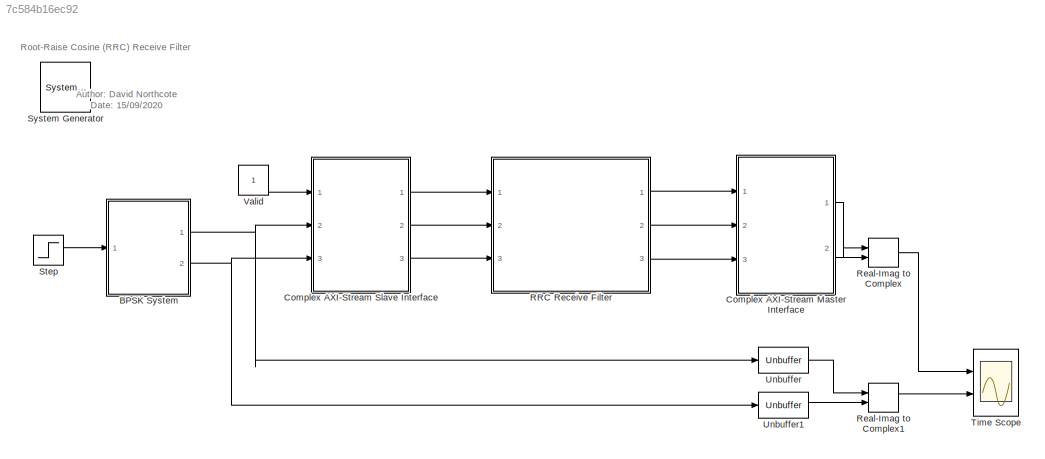
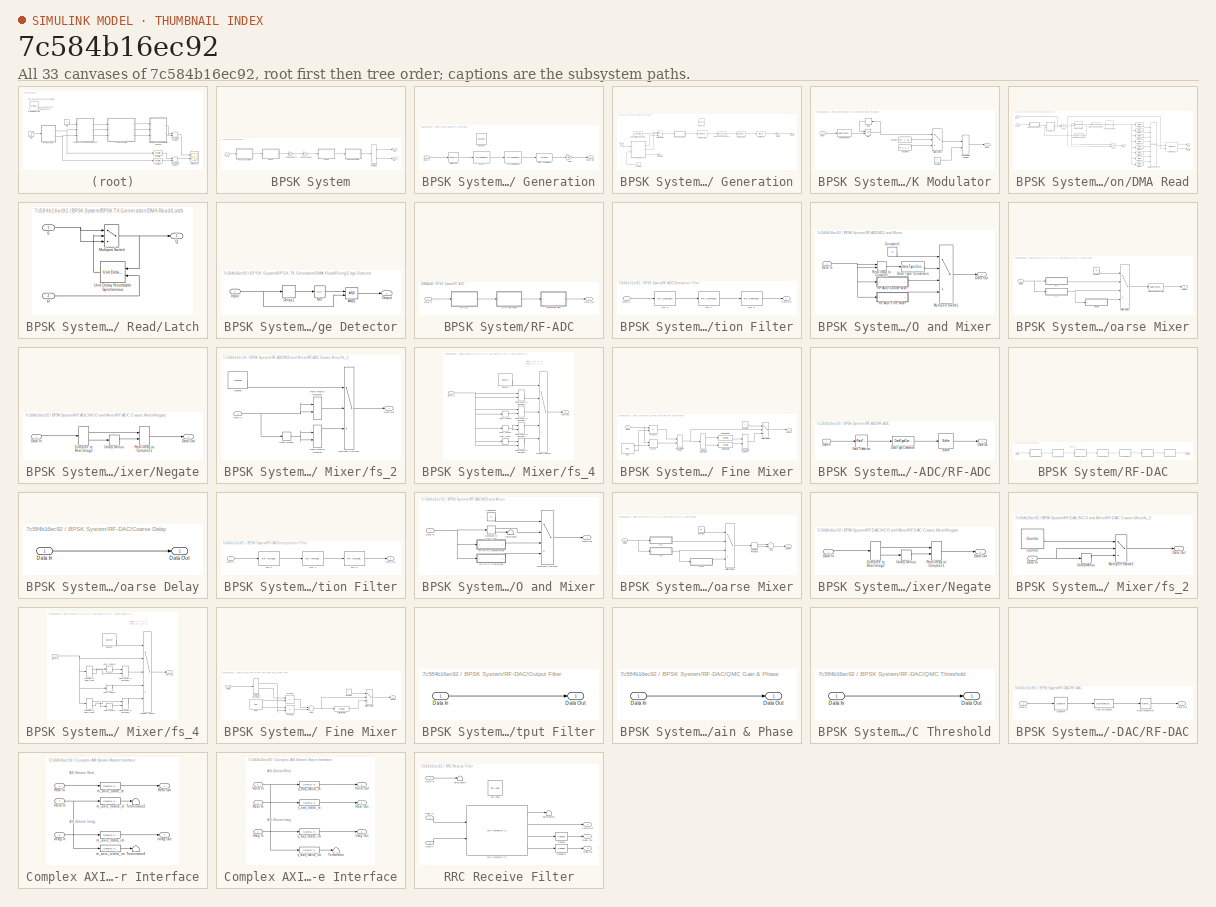
[diagram: thumbnail index - all 33 canvases of the model, root first then tree order]
MODEL slx_7c584b16ec92
KIND model
CONFIG AbsTol = auto
CONFIG EnableMultiTasking = off
CONFIG FixedStep = auto
CONFIG InitFcn = setup_bpsk_receiver
CONFIG MaxStep = auto
CONFIG MinStep = auto
CONFIG RelTol = 1e-3
CONFIG SampleTimeConstraint = Unconstrained
CONFIG Solver = VariableStepAuto
CONFIG SolverName = VariableStepAuto
CONFIG StartTime = 0.0
CONFIG StopTime = 5000/12.8e6
BLOCK [Reference]  System Generator  REF=xbsIndex_r4/ System Generator
  AttributesFormatString = System\nGenerator
  Ports = []
  SourceBlock = xbsIndex_r4/ System Generator
  SourceType = Xilinx System Generator Block
  Tag = genX
  UserDataPersistent = on
BLOCK [SubSystem] BPSK System
  Ports = [1, 2]
  RequestExecContextInheritance = off
BLOCK [SubSystem] BPSK System/BPSK RX Generation
  Ports = [1, 1]
  RequestExecContextInheritance = off
BLOCK [Reference] BPSK System/BPSK RX Generation/CIC Decimation  REF=dspmlti4/CIC
Decimation
  Ports = [1, 1]
  SourceBlock = dspmlti4/CIC\nDecimation
  SourceProductBaseCode = DS
  SourceProductName = DSP System Toolbox
  SourceType = CIC Decimation
  UserDataPersistent = on
BLOCK [Inport] BPSK System/BPSK RX Generation/Data In
  IconDisplay = Port number
BLOCK [Outport] BPSK System/BPSK RX Generation/Data Out
  IconDisplay = Port number
BLOCK [Reference] BPSK System/BPSK RX Generation/FDATool  REF=xbsIndex_r4/FDATool
  Ports = []
  SourceBlock = xbsIndex_r4/FDATool
  SourceType = Xilinx FDATool Interface Block
  UserDataPersistent = on
BLOCK [Reference] BPSK System/BPSK RX Generation/FIR 0  REF=dspmlti4/FIR
Decimation
  Ports = [1, 1]
  SourceBlock = dspmlti4/FIR\nDecimation
  SourceProductBaseCode = DS
  SourceProductName = DSP System Toolbox
  SourceType = FIR Decimation
  UserDataPersistent = on
BLOCK [Gain] BPSK System/BPSK RX Generation/Gain
  Gain = 2^(floor(log2(5^3)))/(5^3)
  OutDataTypeStr = fixdt(1,16,14)
  ParamDataTypeStr = fixdt(1,16,14)
  SaturateOnIntegerOverflow = off
BLOCK [ArithShift] BPSK System/BPSK RX Generation/Shift Arithmetic
  BitShiftDirection = Right
  BitShiftNumber = floor(log2(5^3))
  InputPortMap = u0
  Ports = [1, 1]
BLOCK [Unbuffer] BPSK System/BPSK RX Generation/Unbuffer
  Ports = [1, 1]
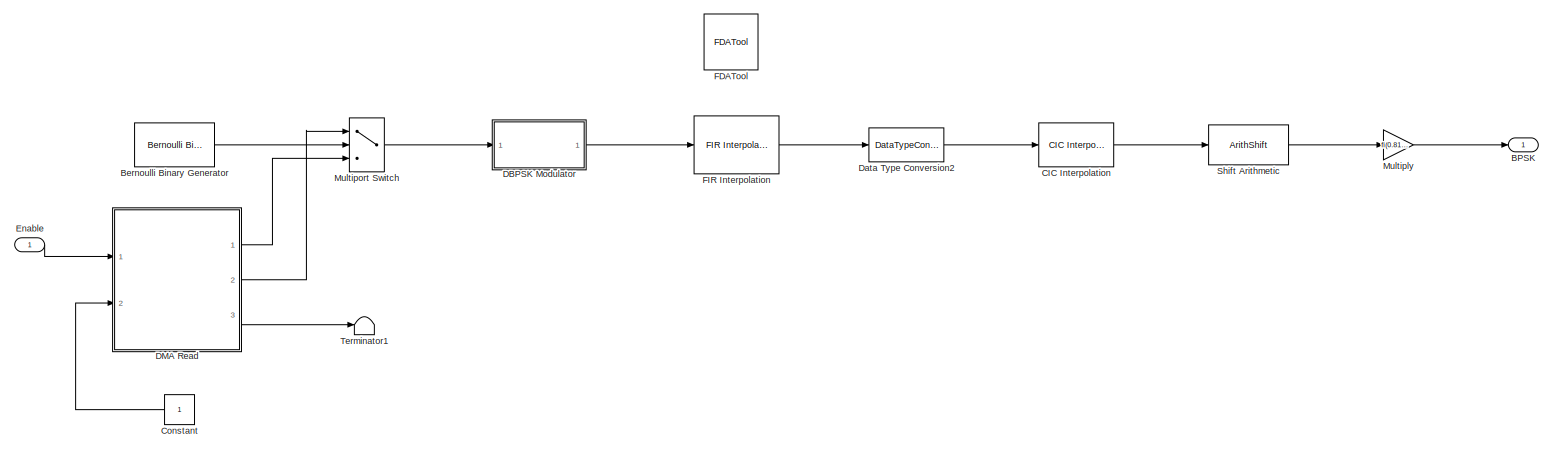
[diagram: BPSK System/BPSK TX Generation - part 1/1, most of the canvas]
BLOCK [SubSystem] BPSK System/BPSK TX Generation
  Ports = [1, 1]
  RequestExecContextInheritance = off
BLOCK [Outport] BPSK System/BPSK TX Generation/BPSK
  IconDisplay = Port number
BLOCK [Reference] BPSK System/BPSK TX Generation/Bernoulli Binary Generator  REF=commrandsrc3/Bernoulli Binary
Generator
  Ports = [0, 1]
  SourceBlock = commrandsrc3/Bernoulli Binary\nGenerator
  SourceProductBaseCode = CM
  SourceProductName = Communications Toolbox
  SourceType = Bernoulli Binary Generator
BLOCK [Reference] BPSK System/BPSK TX Generation/CIC Interpolation  REF=dspmlti4/CIC
Interpolation
  Ports = [1, 1]
  SourceBlock = dspmlti4/CIC\nInterpolation
  SourceProductBaseCode = DS
  SourceProductName = DSP System Toolbox
  SourceType = CIC Interpolation
  UserDataPersistent = on
BLOCK [Constant] BPSK System/BPSK TX Generation/Constant
  SampleTime = 1/12.5e3
BLOCK [SubSystem] BPSK System/BPSK TX Generation/DBPSK Modulator
  Ports = [1, 1]
  RequestExecContextInheritance = off
BLOCK [DataTypeConversion] BPSK System/BPSK TX Generation/DBPSK Modulator/Cast To Boolean
  OutDataTypeStr = boolean
  RndMeth = Floor
  SaturateOnIntegerOverflow = off
BLOCK [Constant] BPSK System/BPSK TX Generation/DBPSK Modulator/Constant
  OutDataTypeStr = fixdt(1,16,14)
  SampleTime = -1
  Value = fi(1, 1, 16, 14)
BLOCK [Constant] BPSK System/BPSK TX Generation/DBPSK Modulator/Constant1
  OutDataTypeStr = fixdt(1,16,14)
  SampleTime = -1
  Value = fi(-1, 1, 16, 14)
BLOCK [Constant] BPSK System/BPSK TX Generation/DBPSK Modulator/Constant2
  OutDataTypeStr = Inherit: Inherit via back propagation
  SampleTime = -1
  Value = 0
BLOCK [Delay] BPSK System/BPSK TX Generation/DBPSK Modulator/Delay
  DelayLength = 1
  InputPortMap = u0
  Ports = [1, 1]
BLOCK [Inport] BPSK System/BPSK TX Generation/DBPSK Modulator/Input
  IconDisplay = Port number
BLOCK [MultiPortSwitch] BPSK System/BPSK TX Generation/DBPSK Modulator/Multiport Switch
  DataPortOrder = Zero-based contiguous
  InputSameDT = off
  Inputs = 2
  Ports = [3, 1]
  SaturateOnIntegerOverflow = off
  zeroidx = on
BLOCK [Outport] BPSK System/BPSK TX Generation/DBPSK Modulator/Output
  IconDisplay = Port number
BLOCK [RealImagToComplex] BPSK System/BPSK TX Generation/DBPSK Modulator/Real-Imag to Complex
  Ports = [2, 1]
BLOCK [Logic] BPSK System/BPSK TX Generation/DBPSK Modulator/XOR
  AllPortsSameDT = off
  IconShape = distinctive
  Operator = XOR
  OutDataTypeStr = boolean
  Ports = [2, 1]
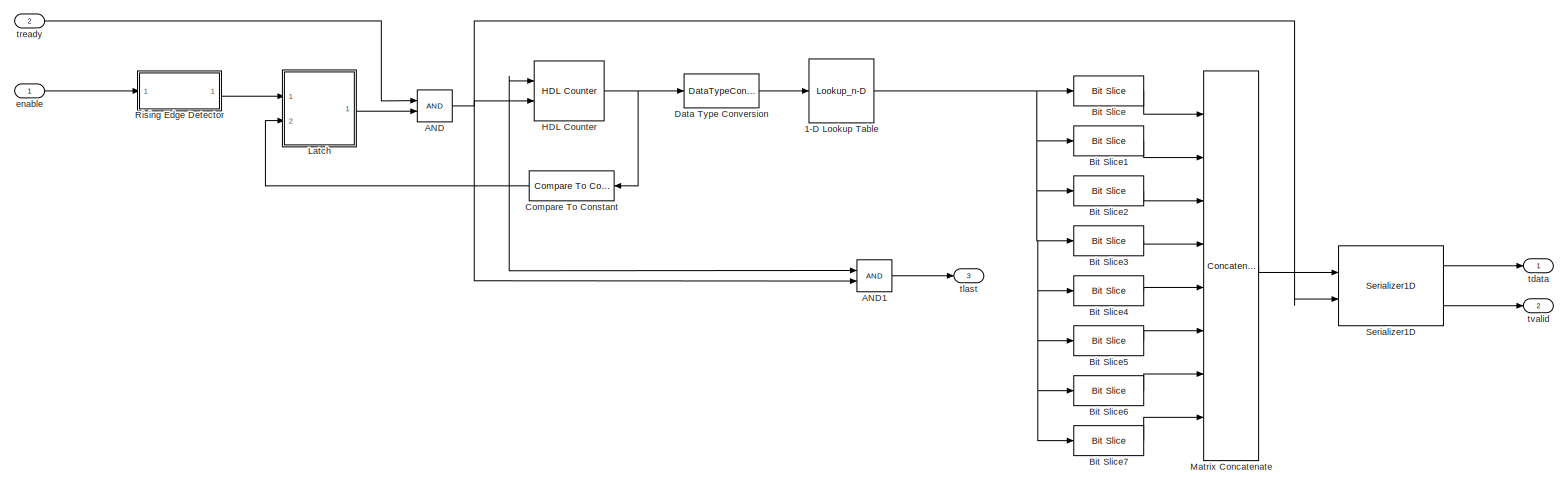
[diagram: BPSK System/BPSK TX Generation/DMA Read - part 1/1, most of the canvas]
BLOCK [SubSystem] BPSK System/BPSK TX Generation/DMA Read
  Ports = [2, 3]
  RequestExecContextInheritance = off
BLOCK [Lookup_n-D] BPSK System/BPSK TX Generation/DMA Read/1-D Lookup Table
  BreakpointsForDimension1 = [0:1:numel(tx_data)-1]
  ExtrapMethod = Clip
  InternalRulePriority = Speed
  NumberOfTableDimensions = 1
  OutDataTypeStr = Inherit: Inherit from 'Table data'
  Ports = [1, 1]
  RndMeth = Simplest
  Table = tx_data
  TableDataTypeStr = Inherit: Inherit from 'Table data'
BLOCK [Logic] BPSK System/BPSK TX Generation/DMA Read/AND
  AllPortsSameDT = off
  IconShape = distinctive
  OutDataTypeStr = boolean
  Ports = [2, 1]
BLOCK [Logic] BPSK System/BPSK TX Generation/DMA Read/AND1
  AllPortsSameDT = off
  IconShape = distinctive
  OutDataTypeStr = boolean
  Ports = [2, 1]
BLOCK [Reference] BPSK System/BPSK TX Generation/DMA Read/Bit Slice  REF=hdlsllib/Logic and Bit
Operations/Bit Slice
  Ports = [1, 1]
  SourceBlock = hdlsllib/Logic and Bit\nOperations/Bit Slice
  SourceProductBaseCode = SL
  SourceProductName = Simulink
  SourceType = Bit Slice
BLOCK [Reference] BPSK System/BPSK TX Generation/DMA Read/Bit Slice1  REF=hdlsllib/Logic and Bit
Operations/Bit Slice
  Ports = [1, 1]
  SourceBlock = hdlsllib/Logic and Bit\nOperations/Bit Slice
  SourceProductBaseCode = SL
  SourceProductName = Simulink
  SourceType = Bit Slice
BLOCK [Reference] BPSK System/BPSK TX Generation/DMA Read/Bit Slice2  REF=hdlsllib/Logic and Bit
Operations/Bit Slice
  Ports = [1, 1]
  SourceBlock = hdlsllib/Logic and Bit\nOperations/Bit Slice
  SourceProductBaseCode = SL
  SourceProductName = Simulink
  SourceType = Bit Slice
BLOCK [Reference] BPSK System/BPSK TX Generation/DMA Read/Bit Slice3  REF=hdlsllib/Logic and Bit
Operations/Bit Slice
  Ports = [1, 1]
  SourceBlock = hdlsllib/Logic and Bit\nOperations/Bit Slice
  SourceProductBaseCode = SL
  SourceProductName = Simulink
  SourceType = Bit Slice
BLOCK [Reference] BPSK System/BPSK TX Generation/DMA Read/Bit Slice4  REF=hdlsllib/Logic and Bit
Operations/Bit Slice
  Ports = [1, 1]
  SourceBlock = hdlsllib/Logic and Bit\nOperations/Bit Slice
  SourceProductBaseCode = SL
  SourceProductName = Simulink
  SourceType = Bit Slice
BLOCK [Reference] BPSK System/BPSK TX Generation/DMA Read/Bit Slice5  REF=hdlsllib/Logic and Bit
Operations/Bit Slice
  Ports = [1, 1]
  SourceBlock = hdlsllib/Logic and Bit\nOperations/Bit Slice
  SourceProductBaseCode = SL
  SourceProductName = Simulink
  SourceType = Bit Slice
BLOCK [Reference] BPSK System/BPSK TX Generation/DMA Read/Bit Slice6  REF=hdlsllib/Logic and Bit
Operations/Bit Slice
  Ports = [1, 1]
  SourceBlock = hdlsllib/Logic and Bit\nOperations/Bit Slice
  SourceProductBaseCode = SL
  SourceProductName = Simulink
  SourceType = Bit Slice
BLOCK [Reference] BPSK System/BPSK TX Generation/DMA Read/Bit Slice7  REF=hdlsllib/Logic and Bit
Operations/Bit Slice
  Ports = [1, 1]
  SourceBlock = hdlsllib/Logic and Bit\nOperations/Bit Slice
  SourceProductBaseCode = SL
  SourceProductName = Simulink
  SourceType = Bit Slice
BLOCK [Reference] BPSK System/BPSK TX Generation/DMA Read/Compare To Constant  REF=simulink/Logic and Bit
Operations/Compare
To Constant
  Ports = [1, 1]
  SourceBlock = simulink/Logic and Bit\nOperations/Compare\nTo Constant
  SourceProductBaseCode = SL
  SourceProductName = Simulink
  SourceType = Compare To Constant
BLOCK [DataTypeConversion] BPSK System/BPSK TX Generation/DMA Read/Data Type Conversion
  OutDataTypeStr = fixdt(0, ceil(log2(numel(tx_data))), 0)
  RndMeth = Floor
  SaturateOnIntegerOverflow = off
BLOCK [Reference] BPSK System/BPSK TX Generation/DMA Read/HDL Counter  REF=hdlsllib/Sources/HDL Counter
  Ports = [2, 1]
  SourceBlock = hdlsllib/Sources/HDL Counter
  SourceProductBaseCode = SL
  SourceProductName = Simulink
  SourceType = HDL Counter
BLOCK [SubSystem] BPSK System/BPSK TX Generation/DMA Read/Latch
  Ports = [2, 1]
  RequestExecContextInheritance = off
BLOCK [MultiPortSwitch] BPSK System/BPSK TX Generation/DMA Read/Latch/Multiport Switch
  DataPortOrder = Zero-based contiguous
  InputSameDT = off
  Inputs = 2
  Ports = [3, 1]
  SaturateOnIntegerOverflow = off
  zeroidx = on
BLOCK [Outport] BPSK System/BPSK TX Generation/DMA Read/Latch/Q
  IconDisplay = Port number
BLOCK [Inport] BPSK System/BPSK TX Generation/DMA Read/Latch/R
  IconDisplay = Port number
  Port = 2
BLOCK [Inport] BPSK System/BPSK TX Generation/DMA Read/Latch/S
  IconDisplay = Port number
BLOCK [Reference] BPSK System/BPSK TX Generation/DMA Read/Latch/Unit Delay Resettable Synchronous  REF=hdlsllib/Discrete/Unit Delay Resettable
Synchronous
  Ports = [2, 1]
  SourceBlock = hdlsllib/Discrete/Unit Delay Resettable\nSynchronous
  SourceProductBaseCode = SL
  SourceProductName = Simulink
  SourceType = Unit Delay Resettable Synchronous
BLOCK [Concatenate] BPSK System/BPSK TX Generation/DMA Read/Matrix Concatenate
  ConcatenateDimension = 2
  Mode = Multidimensional array
  NumInputs = 8
  Ports = [8, 1]
BLOCK [SubSystem] BPSK System/BPSK TX Generation/DMA Read/Rising Edge Detector
  Ports = [1, 1]
  RequestExecContextInheritance = off
BLOCK [Logic] BPSK System/BPSK TX Generation/DMA Read/Rising Edge Detector/AND1
  AllPortsSameDT = off
  IconShape = distinctive
  OutDataTypeStr = boolean
  Ports = [2, 1]
BLOCK [Delay] BPSK System/BPSK TX Generation/DMA Read/Rising Edge Detector/Delay1
  DelayLength = 1
  InputPortMap = u0
  Ports = [1, 1]
BLOCK [Inport] BPSK System/BPSK TX Generation/DMA Read/Rising Edge Detector/Input
  IconDisplay = Port number
BLOCK [Logic] BPSK System/BPSK TX Generation/DMA Read/Rising Edge Detector/NOT
  AllPortsSameDT = off
  IconShape = distinctive
  Operator = NOT
  OutDataTypeStr = boolean
  Ports = [1, 1]
BLOCK [Outport] BPSK System/BPSK TX Generation/DMA Read/Rising Edge Detector/Output
  IconDisplay = Port number
BLOCK [Reference] BPSK System/BPSK TX Generation/DMA Read/Serializer1D  REF=hdlsllib/HDL Operations/Serializer1D
  Ports = [2, 2]
  SourceBlock = hdlsllib/HDL Operations/Serializer1D
  SourceProductBaseCode = SL
  SourceProductName = Simulink
  SourceType = Serializer1D
BLOCK [Inport] BPSK System/BPSK TX Generation/DMA Read/enable
  IconDisplay = Port number
BLOCK [Outport] BPSK System/BPSK TX Generation/DMA Read/tdata
  IconDisplay = Port number
BLOCK [Outport] BPSK System/BPSK TX Generation/DMA Read/tlast
  IconDisplay = Port number
  Port = 3
BLOCK [Inport] BPSK System/BPSK TX Generation/DMA Read/tready
  IconDisplay = Port number
  Port = 2
BLOCK [Outport] BPSK System/BPSK TX Generation/DMA Read/tvalid
  IconDisplay = Port number
  Port = 2
BLOCK [DataTypeConversion] BPSK System/BPSK TX Generation/Data Type Conversion2
  OutDataTypeStr = fixdt(1,16,14)
  RndMeth = Floor
  SaturateOnIntegerOverflow = off
BLOCK [Inport] BPSK System/BPSK TX Generation/Enable
  IconDisplay = Port number
BLOCK [Reference] BPSK System/BPSK TX Generation/FDATool  REF=xbsIndex_r4/FDATool
  Ports = []
  SourceBlock = xbsIndex_r4/FDATool
  SourceType = Xilinx FDATool Interface Block
  UserDataPersistent = on
BLOCK [Reference] BPSK System/BPSK TX Generation/FIR Interpolation  REF=dspmlti4/FIR
Interpolation
  Ports = [1, 1]
  SourceBlock = dspmlti4/FIR\nInterpolation
  SourceProductBaseCode = DS
  SourceProductName = DSP System Toolbox
  SourceType = FIR Interpolation
  UserDataPersistent = on
BLOCK [Gain] BPSK System/BPSK TX Generation/Multiply
  Gain = fi(0.8192, 1, 16, 14)
  OutDataTypeStr = fixdt(1,16,14)
  ParamDataTypeStr = fixdt(1,16,15)
  SaturateOnIntegerOverflow = off
BLOCK [MultiPortSwitch] BPSK System/BPSK TX Generation/Multiport Switch
  DataPortOrder = Zero-based contiguous
  InputSameDT = off
  Inputs = 2
  Ports = [3, 1]
  SaturateOnIntegerOverflow = off
  zeroidx = on
BLOCK [ArithShift] BPSK System/BPSK TX Generation/Shift Arithmetic
  BitShiftDirection = Right
  BitShiftNumber = 33
  InputPortMap = u0
  Ports = [1, 1]
BLOCK [Terminator] BPSK System/BPSK TX Generation/Terminator1
BLOCK [ComplexToRealImag] BPSK System/Complex to Real-Imag
  Ports = [1, 2]
BLOCK [Inport] BPSK System/Enable
  IconDisplay = Port number
BLOCK [Outport] BPSK System/Im
  IconDisplay = Port number
  Port = 2
BLOCK [Gain] BPSK System/RF Balun Gain RX
  Gain = 1/2
  OutDataTypeStr = Inherit: Inherit via internal rule
  ParamDataTypeStr = Inherit: Inherit via internal rule
  SaturateOnIntegerOverflow = off
BLOCK [Gain] BPSK System/RF Balun Gain TX
  Gain = 1/2
  OutDataTypeStr = Inherit: Inherit via internal rule
  ParamDataTypeStr = Inherit: Inherit via internal rule
  SaturateOnIntegerOverflow = off
BLOCK [SubSystem] BPSK System/RF-ADC
  Ports = [1, 1]
  RequestExecContextInheritance = off
BLOCK [Inport] BPSK System/RF-ADC/Data In
  IconDisplay = Port number
BLOCK [Outport] BPSK System/RF-ADC/Data Out
  IconDisplay = Port number
BLOCK [SubSystem] BPSK System/RF-ADC/Decimation Filter
  Ports = [1, 1]
  RequestExecContextInheritance = off
BLOCK [Inport] BPSK System/RF-ADC/Decimation Filter/Data In
  IconDisplay = Port number
BLOCK [Outport] BPSK System/RF-ADC/Decimation Filter/Data Out
  IconDisplay = Port number
BLOCK [Reference] BPSK System/RF-ADC/Decimation Filter/FIR 0  REF=dspmlti4/FIR
Decimation
  Ports = [1, 1]
  SourceBlock = dspmlti4/FIR\nDecimation
  SourceProductBaseCode = DS
  SourceProductName = DSP System Toolbox
  SourceType = FIR Decimation
  UserDataPersistent = on
BLOCK [Reference] BPSK System/RF-ADC/Decimation Filter/FIR 1  REF=dspmlti4/FIR
Decimation
  Ports = [1, 1]
  SourceBlock = dspmlti4/FIR\nDecimation
  SourceProductBaseCode = DS
  SourceProductName = DSP System Toolbox
  SourceType = FIR Decimation
  UserDataPersistent = on
BLOCK [Reference] BPSK System/RF-ADC/Decimation Filter/FIR 2  REF=dspmlti4/FIR
Decimation
  Ports = [1, 1]
  SourceBlock = dspmlti4/FIR\nDecimation
  SourceProductBaseCode = DS
  SourceProductName = DSP System Toolbox
  SourceType = FIR Decimation
  UserDataPersistent = on
BLOCK [SubSystem] BPSK System/RF-ADC/NCO and Mixer
  Ports = [1, 1]
  RequestExecContextInheritance = off
BLOCK [Constant] BPSK System/RF-ADC/NCO and Mixer/Constant1
  OutDataTypeStr = fixdt(0,2,0)
  SampleTime = -1
  Value = m
BLOCK [Inport] BPSK System/RF-ADC/NCO and Mixer/Data In
  IconDisplay = Port number
BLOCK [Outport] BPSK System/RF-ADC/NCO and Mixer/Data Out
  IconDisplay = Port number
BLOCK [DataTypeConversion] BPSK System/RF-ADC/NCO and Mixer/Data Type Conversion
  OutDataTypeStr = fixdt(1,16,14)
  RndMeth = Floor
  SaturateOnIntegerOverflow = off
BLOCK [MultiPortSwitch] BPSK System/RF-ADC/NCO and Mixer/Multiport Switch1
  DataPortOrder = Zero-based contiguous
  InputSameDT = off
  Ports = [4, 1]
  SaturateOnIntegerOverflow = off
  zeroidx = on
BLOCK [SubSystem] BPSK System/RF-ADC/NCO and Mixer/RF-ADC Coarse Mixer
  Ports = [1, 1]
  RequestExecContextInheritance = off
BLOCK [Constant] BPSK System/RF-ADC/NCO and Mixer/RF-ADC Coarse Mixer/Constant
  OutDataTypeStr = fixdt(0,2,0)
  SampleTime = -1
  Value = mc
BLOCK [Inport] BPSK System/RF-ADC/NCO and Mixer/RF-ADC Coarse Mixer/Data In
  IconDisplay = Port number
BLOCK [Outport] BPSK System/RF-ADC/NCO and Mixer/RF-ADC Coarse Mixer/Data Out
  IconDisplay = Port number
BLOCK [DataTypeConversion] BPSK System/RF-ADC/NCO and Mixer/RF-ADC Coarse Mixer/Data Type Conversion
  OutDataTypeStr = fixdt(1,16,14)
  RndMeth = Floor
  SaturateOnIntegerOverflow = off
BLOCK [MultiPortSwitch] BPSK System/RF-ADC/NCO and Mixer/RF-ADC Coarse Mixer/Multiport Switch1
  DataPortOrder = Zero-based contiguous
  InputSameDT = off
  Ports = [4, 1]
  SaturateOnIntegerOverflow = off
  zeroidx = on
BLOCK [SubSystem] BPSK System/RF-ADC/NCO and Mixer/RF-ADC Coarse Mixer/Negate
  Ports = [1, 1]
  RequestExecContextInheritance = off
BLOCK [ComplexToRealImag] BPSK System/RF-ADC/NCO and Mixer/RF-ADC Coarse Mixer/Negate/Complex to Real-Imag2
  Ports = [1, 2]
BLOCK [Inport] BPSK System/RF-ADC/NCO and Mixer/RF-ADC Coarse Mixer/Negate/Data In
  IconDisplay = Port number
BLOCK [Outport] BPSK System/RF-ADC/NCO and Mixer/RF-ADC Coarse Mixer/Negate/Data Out
  IconDisplay = Port number
BLOCK [RealImagToComplex] BPSK System/RF-ADC/NCO and Mixer/RF-ADC Coarse Mixer/Negate/Real-Imag to Complex1
  Ports = [2, 1]
BLOCK [UnaryMinus] BPSK System/RF-ADC/NCO and Mixer/RF-ADC Coarse Mixer/Negate/Unary Minus
BLOCK [SubSystem] BPSK System/RF-ADC/NCO and Mixer/RF-ADC Coarse Mixer/fs_2
  Ports = [1, 1]
  RequestExecContextInheritance = off
BLOCK [Reference] BPSK System/RF-ADC/NCO and Mixer/RF-ADC Coarse Mixer/fs_2/Counter  REF=dspswit3/Counter
  Ports = [0, 1]
  SourceBlock = dspswit3/Counter
  SourceProductBaseCode = DS
  SourceProductName = DSP System Toolbox
  SourceType = Counter
BLOCK [Inport] BPSK System/RF-ADC/NCO and Mixer/RF-ADC Coarse Mixer/fs_2/Data In
  IconDisplay = Port number
BLOCK [Outport] BPSK System/RF-ADC/NCO and Mixer/RF-ADC Coarse Mixer/fs_2/Data Out
  IconDisplay = Port number
BLOCK [MultiPortSwitch] BPSK System/RF-ADC/NCO and Mixer/RF-ADC Coarse Mixer/fs_2/Multiport Switch2
  DataPortOrder = Zero-based contiguous
  InputSameDT = off
  Inputs = 2
  Ports = [3, 1]
  SaturateOnIntegerOverflow = off
  zeroidx = on
BLOCK [RealImagToComplex] BPSK System/RF-ADC/NCO and Mixer/RF-ADC Coarse Mixer/fs_2/Real-Imag to Complex
  Ports = [2, 1]
BLOCK [RealImagToComplex] BPSK System/RF-ADC/NCO and Mixer/RF-ADC Coarse Mixer/fs_2/Real-Imag to Complex1
  Ports = [2, 1]
BLOCK [UnaryMinus] BPSK System/RF-ADC/NCO and Mixer/RF-ADC Coarse Mixer/fs_2/Unary Minus1
BLOCK [SubSystem] BPSK System/RF-ADC/NCO and Mixer/RF-ADC Coarse Mixer/fs_4
  Ports = [1, 1]
  RequestExecContextInheritance = off
BLOCK [Reference] BPSK System/RF-ADC/NCO and Mixer/RF-ADC Coarse Mixer/fs_4/Counter  REF=dspswit3/Counter
  Ports = [0, 1]
  SourceBlock = dspswit3/Counter
  SourceProductBaseCode = DS
  SourceProductName = DSP System Toolbox
  SourceType = Counter
BLOCK [Inport] BPSK System/RF-ADC/NCO and Mixer/RF-ADC Coarse Mixer/fs_4/Data In
  IconDisplay = Port number
BLOCK [Outport] BPSK System/RF-ADC/NCO and Mixer/RF-ADC Coarse Mixer/fs_4/Data Out
  IconDisplay = Port number
BLOCK [MultiPortSwitch] BPSK System/RF-ADC/NCO and Mixer/RF-ADC Coarse Mixer/fs_4/Multiport Switch2
  DataPortOrder = Zero-based contiguous
  InputSameDT = off
  Inputs = 4
  Ports = [5, 1]
  SaturateOnIntegerOverflow = off
  zeroidx = on
BLOCK [RealImagToComplex] BPSK System/RF-ADC/NCO and Mixer/RF-ADC Coarse Mixer/fs_4/Real-Imag to Complex1
  Ports = [2, 1]
BLOCK [RealImagToComplex] BPSK System/RF-ADC/NCO and Mixer/RF-ADC Coarse Mixer/fs_4/Real-Imag to Complex2
  Ports = [2, 1]
BLOCK [RealImagToComplex] BPSK System/RF-ADC/NCO and Mixer/RF-ADC Coarse Mixer/fs_4/Real-Imag to Complex3
  Ports = [2, 1]
BLOCK [RealImagToComplex] BPSK System/RF-ADC/NCO and Mixer/RF-ADC Coarse Mixer/fs_4/Real-Imag to Complex4
  Ports = [2, 1]
BLOCK [UnaryMinus] BPSK System/RF-ADC/NCO and Mixer/RF-ADC Coarse Mixer/fs_4/Unary Minus
BLOCK [UnaryMinus] BPSK System/RF-ADC/NCO and Mixer/RF-ADC Coarse Mixer/fs_4/Unary Minus1
BLOCK [UnaryMinus] BPSK System/RF-ADC/NCO and Mixer/RF-ADC Coarse Mixer/fs_4/Unary Minus2
BLOCK [SubSystem] BPSK System/RF-ADC/NCO and Mixer/RF-ADC Fine Mixer
  Ports = [1, 1]
  RequestExecContextInheritance = off
BLOCK [ComplexToRealImag] BPSK System/RF-ADC/NCO and Mixer/RF-ADC Fine Mixer/Complex to Real-Imag
  Ports = [1, 2]
BLOCK [Constant] BPSK System/RF-ADC/NCO and Mixer/RF-ADC Fine Mixer/Constant
  SampleTime = -1
  Value = 0
BLOCK [Inport] BPSK System/RF-ADC/NCO and Mixer/RF-ADC Fine Mixer/Data In
  IconDisplay = Port number
BLOCK [Outport] BPSK System/RF-ADC/NCO and Mixer/RF-ADC Fine Mixer/Data Out
  IconDisplay = Port number
BLOCK [MultiPortSwitch] BPSK System/RF-ADC/NCO and Mixer/RF-ADC Fine Mixer/Multiport Switch
  DataPortOrder = Zero-based contiguous
  InputSameDT = off
  Inputs = 2
  Ports = [3, 1]
  SaturateOnIntegerOverflow = off
  zeroidx = on
BLOCK [Reference] BPSK System/RF-ADC/NCO and Mixer/RF-ADC Fine Mixer/NCO  REF=dspsigops/NCO
  Ports = [0, 2]
  SourceBlock = dspsigops/NCO
  SourceProductBaseCode = DS
  SourceProductName = DSP System Toolbox
  SourceType = NCO
BLOCK [Product] BPSK System/RF-ADC/NCO and Mixer/RF-ADC Fine Mixer/Product
  InputSameDT = off
  OutDataTypeStr = fixdt(1,16,14)
  Ports = [2, 1]
  RndMeth = Floor
  SaturateOnIntegerOverflow = off
BLOCK [Product] BPSK System/RF-ADC/NCO and Mixer/RF-ADC Fine Mixer/Product1
  InputSameDT = off
  OutDataTypeStr = fixdt(1,16,14)
  Ports = [2, 1]
  RndMeth = Floor
  SaturateOnIntegerOverflow = off
BLOCK [RealImagToComplex] BPSK System/RF-ADC/NCO and Mixer/RF-ADC Fine Mixer/Real-Imag to Complex
  Ports = [2, 1]
BLOCK [RealImagToComplex] BPSK System/RF-ADC/NCO and Mixer/RF-ADC Fine Mixer/Real-Imag to Complex1
  Ports = [2, 1]
BLOCK [ArithShift] BPSK System/RF-ADC/NCO and Mixer/RF-ADC Fine Mixer/Shift Arithmetic
  BitShiftDirection = Right
  BitShiftNumber = 1
  InputPortMap = u0
  Ports = [1, 1]
BLOCK [ArithShift] BPSK System/RF-ADC/NCO and Mixer/RF-ADC Fine Mixer/Shift Arithmetic1
  BitShiftDirection = Right
  BitShiftNumber = 1
  InputPortMap = u0
  Ports = [1, 1]
BLOCK [RealImagToComplex] BPSK System/RF-ADC/NCO and Mixer/Real-Imag to Complex
  Ports = [2, 1]
BLOCK [SubSystem] BPSK System/RF-ADC/RF-ADC
  Ports = [1, 1]
  RequestExecContextInheritance = off
BLOCK [Buffer] BPSK System/RF-ADC/RF-ADC/Buffer
  N = ssr
  OutputFrames = off
BLOCK [Inport] BPSK System/RF-ADC/RF-ADC/Data In
  IconDisplay = Port number
BLOCK [Outport] BPSK System/RF-ADC/RF-ADC/Data Out
  IconDisplay = Port number
BLOCK [DataTypeConversion] BPSK System/RF-ADC/RF-ADC/Data Type Conversion
  OutDataTypeStr = fixdt(1,12,10)
  RndMeth = Floor
  SaturateOnIntegerOverflow = off
BLOCK [RateTransition] BPSK System/RF-ADC/RF-ADC/Rate Transition
  OutPortSampleTime = 1/fs
BLOCK [SubSystem] BPSK System/RF-DAC
  Ports = [1, 1]
  RequestExecContextInheritance = off
BLOCK [SubSystem] BPSK System/RF-DAC/Coarse Delay
  Ports = [1, 1]
  RequestExecContextInheritance = off
BLOCK [Inport] BPSK System/RF-DAC/Coarse Delay/Data In
  IconDisplay = Port number
BLOCK [Outport] BPSK System/RF-DAC/Coarse Delay/Data Out
  IconDisplay = Port number
BLOCK [Inport] BPSK System/RF-DAC/Data In
  IconDisplay = Port number
BLOCK [Outport] BPSK System/RF-DAC/Data Out
  IconDisplay = Port number
BLOCK [SubSystem] BPSK System/RF-DAC/Interpolation Filter
  Ports = [1, 1]
  RequestExecContextInheritance = off
BLOCK [Inport] BPSK System/RF-DAC/Interpolation Filter/Data In
  IconDisplay = Port number
BLOCK [Outport] BPSK System/RF-DAC/Interpolation Filter/Data Out
  IconDisplay = Port number
BLOCK [Reference] BPSK System/RF-DAC/Interpolation Filter/FIR 0  REF=dspmlti4/FIR
Interpolation
  Ports = [1, 1]
  SourceBlock = dspmlti4/FIR\nInterpolation
  SourceProductBaseCode = DS
  SourceProductName = DSP System Toolbox
  SourceType = FIR Interpolation
  UserDataPersistent = on
BLOCK [Reference] BPSK System/RF-DAC/Interpolation Filter/FIR 1  REF=dspmlti4/FIR
Interpolation
  Ports = [1, 1]
  SourceBlock = dspmlti4/FIR\nInterpolation
  SourceProductBaseCode = DS
  SourceProductName = DSP System Toolbox
  SourceType = FIR Interpolation
  UserDataPersistent = on
BLOCK [Reference] BPSK System/RF-DAC/Interpolation Filter/FIR 2  REF=dspmlti4/FIR
Interpolation
  Ports = [1, 1]
  SourceBlock = dspmlti4/FIR\nInterpolation
  SourceProductBaseCode = DS
  SourceProductName = DSP System Toolbox
  SourceType = FIR Interpolation
  UserDataPersistent = on
BLOCK [SubSystem] BPSK System/RF-DAC/NCO and Mixer
  Ports = [1, 1]
  RequestExecContextInheritance = off
BLOCK [ComplexToRealImag] BPSK System/RF-DAC/NCO and Mixer/Complex to Real-Imag
  Ports = [1, 2]
BLOCK [Constant] BPSK System/RF-DAC/NCO and Mixer/Constant1
  OutDataTypeStr = fixdt(0,2,0)
  SampleTime = -1
  Value = m
BLOCK [Inport] BPSK System/RF-DAC/NCO and Mixer/Data In
  IconDisplay = Port number
BLOCK [Outport] BPSK System/RF-DAC/NCO and Mixer/Data Out
  IconDisplay = Port number
BLOCK [MultiPortSwitch] BPSK System/RF-DAC/NCO and Mixer/Multiport Switch1
  DataPortOrder = Zero-based contiguous
  InputSameDT = off
  Ports = [4, 1]
  SaturateOnIntegerOverflow = off
  zeroidx = on
BLOCK [SubSystem] BPSK System/RF-DAC/NCO and Mixer/RF-DAC Coarse Mixer
  Ports = [1, 1]
  RequestExecContextInheritance = off
BLOCK [Sum] BPSK System/RF-DAC/NCO and Mixer/RF-DAC Coarse Mixer/Add2
  InputSameDT = off
  OutDataTypeStr = Inherit: Inherit via internal rule
  Ports = [2, 1]
  SaturateOnIntegerOverflow = off
BLOCK [ComplexToRealImag] BPSK System/RF-DAC/NCO and Mixer/RF-DAC Coarse Mixer/Complex to Real-Imag
  Ports = [1, 2]
BLOCK [Constant] BPSK System/RF-DAC/NCO and Mixer/RF-DAC Coarse Mixer/Constant
  OutDataTypeStr = fixdt(0,2,0)
  SampleTime = -1
  Value = mc
BLOCK [Inport] BPSK System/RF-DAC/NCO and Mixer/RF-DAC Coarse Mixer/Data In
  IconDisplay = Port number
BLOCK [Outport] BPSK System/RF-DAC/NCO and Mixer/RF-DAC Coarse Mixer/Data Out
  IconDisplay = Port number
BLOCK [MultiPortSwitch] BPSK System/RF-DAC/NCO and Mixer/RF-DAC Coarse Mixer/Multiport Switch1
  DataPortOrder = Zero-based contiguous
  InputSameDT = off
  Ports = [4, 1]
  SaturateOnIntegerOverflow = off
  zeroidx = on
BLOCK [SubSystem] BPSK System/RF-DAC/NCO and Mixer/RF-DAC Coarse Mixer/Negate
  Ports = [1, 1]
  RequestExecContextInheritance = off
BLOCK [ComplexToRealImag] BPSK System/RF-DAC/NCO and Mixer/RF-DAC Coarse Mixer/Negate/Complex to Real-Imag2
  Ports = [1, 2]
BLOCK [Inport] BPSK System/RF-DAC/NCO and Mixer/RF-DAC Coarse Mixer/Negate/Data In
  IconDisplay = Port number
BLOCK [Outport] BPSK System/RF-DAC/NCO and Mixer/RF-DAC Coarse Mixer/Negate/Data Out
  IconDisplay = Port number
BLOCK [RealImagToComplex] BPSK System/RF-DAC/NCO and Mixer/RF-DAC Coarse Mixer/Negate/Real-Imag to Complex1
  Ports = [2, 1]
BLOCK [UnaryMinus] BPSK System/RF-DAC/NCO and Mixer/RF-DAC Coarse Mixer/Negate/Unary Minus
BLOCK [SubSystem] BPSK System/RF-DAC/NCO and Mixer/RF-DAC Coarse Mixer/fs_2
  Ports = [1, 1]
  RequestExecContextInheritance = off
BLOCK [Reference] BPSK System/RF-DAC/NCO and Mixer/RF-DAC Coarse Mixer/fs_2/Counter  REF=dspswit3/Counter
  Ports = [0, 1]
  SourceBlock = dspswit3/Counter
  SourceProductBaseCode = DS
  SourceProductName = DSP System Toolbox
  SourceType = Counter
BLOCK [Inport] BPSK System/RF-DAC/NCO and Mixer/RF-DAC Coarse Mixer/fs_2/Data In
  IconDisplay = Port number
BLOCK [Outport] BPSK System/RF-DAC/NCO and Mixer/RF-DAC Coarse Mixer/fs_2/Data Out
  IconDisplay = Port number
BLOCK [MultiPortSwitch] BPSK System/RF-DAC/NCO and Mixer/RF-DAC Coarse Mixer/fs_2/Multiport Switch2
  DataPortOrder = Zero-based contiguous
  InputSameDT = off
  Inputs = 2
  Ports = [3, 1]
  SaturateOnIntegerOverflow = off
  zeroidx = on
BLOCK [UnaryMinus] BPSK System/RF-DAC/NCO and Mixer/RF-DAC Coarse Mixer/fs_2/Unary Minus
BLOCK [SubSystem] BPSK System/RF-DAC/NCO and Mixer/RF-DAC Coarse Mixer/fs_4
  Ports = [1, 1]
  RequestExecContextInheritance = off
BLOCK [ComplexToRealImag] BPSK System/RF-DAC/NCO and Mixer/RF-DAC Coarse Mixer/fs_4/Complex to Real-Imag
  Ports = [1, 2]
BLOCK [ComplexToRealImag] BPSK System/RF-DAC/NCO and Mixer/RF-DAC Coarse Mixer/fs_4/Complex to Real-Imag1
  Ports = [1, 2]
BLOCK [Reference] BPSK System/RF-DAC/NCO and Mixer/RF-DAC Coarse Mixer/fs_4/Counter  REF=dspswit3/Counter
  Ports = [0, 1]
  SourceBlock = dspswit3/Counter
  SourceProductBaseCode = DS
  SourceProductName = DSP System Toolbox
  SourceType = Counter
BLOCK [Inport] BPSK System/RF-DAC/NCO and Mixer/RF-DAC Coarse Mixer/fs_4/Data In
  IconDisplay = Port number
BLOCK [Outport] BPSK System/RF-DAC/NCO and Mixer/RF-DAC Coarse Mixer/fs_4/Data Out
  IconDisplay = Port number
BLOCK [MultiPortSwitch] BPSK System/RF-DAC/NCO and Mixer/RF-DAC Coarse Mixer/fs_4/Multiport Switch2
  DataPortOrder = Zero-based contiguous
  InputSameDT = off
  Inputs = 4
  Ports = [5, 1]
  SaturateOnIntegerOverflow = off
  zeroidx = on
BLOCK [RealImagToComplex] BPSK System/RF-DAC/NCO and Mixer/RF-DAC Coarse Mixer/fs_4/Real-Imag to Complex2
  Ports = [2, 1]
BLOCK [RealImagToComplex] BPSK System/RF-DAC/NCO and Mixer/RF-DAC Coarse Mixer/fs_4/Real-Imag to Complex3
  Ports = [2, 1]
BLOCK [UnaryMinus] BPSK System/RF-DAC/NCO and Mixer/RF-DAC Coarse Mixer/fs_4/Unary Minus
BLOCK [UnaryMinus] BPSK System/RF-DAC/NCO and Mixer/RF-DAC Coarse Mixer/fs_4/Unary Minus1
BLOCK [UnaryMinus] BPSK System/RF-DAC/NCO and Mixer/RF-DAC Coarse Mixer/fs_4/Unary Minus2
BLOCK [SubSystem] BPSK System/RF-DAC/NCO and Mixer/RF-DAC Fine Mixer
  Ports = [1, 1]
  RequestExecContextInheritance = off
BLOCK [Sum] BPSK System/RF-DAC/NCO and Mixer/RF-DAC Fine Mixer/Add2
  InputSameDT = off
  OutDataTypeStr = Inherit: Inherit via internal rule
  Ports = [2, 1]
  SaturateOnIntegerOverflow = off
BLOCK [ComplexToRealImag] BPSK System/RF-DAC/NCO and Mixer/RF-DAC Fine Mixer/Complex to Real-Imag1
  Ports = [1, 2]
BLOCK [Constant] BPSK System/RF-DAC/NCO and Mixer/RF-DAC Fine Mixer/Constant
  OutDataTypeStr = boolean
  SampleTime = -1
  Value = 0
BLOCK [Inport] BPSK System/RF-DAC/NCO and Mixer/RF-DAC Fine Mixer/Data In
  IconDisplay = Port number
BLOCK [Outport] BPSK System/RF-DAC/NCO and Mixer/RF-DAC Fine Mixer/Data Out
  IconDisplay = Port number
BLOCK [MultiPortSwitch] BPSK System/RF-DAC/NCO and Mixer/RF-DAC Fine Mixer/Multiport Switch
  DataPortOrder = Zero-based contiguous
  InputSameDT = off
  Inputs = 2
  Ports = [3, 1]
  SaturateOnIntegerOverflow = off
  zeroidx = on
BLOCK [Reference] BPSK System/RF-DAC/NCO and Mixer/RF-DAC Fine Mixer/NCO  REF=dspsigops/NCO
  Ports = [0, 2]
  SourceBlock = dspsigops/NCO
  SourceProductBaseCode = DS
  SourceProductName = DSP System Toolbox
  SourceType = NCO
BLOCK [Product] BPSK System/RF-DAC/NCO and Mixer/RF-DAC Fine Mixer/Product1
  InputSameDT = off
  Ports = [2, 1]
  RndMeth = Floor
  SaturateOnIntegerOverflow = off
BLOCK [Product] BPSK System/RF-DAC/NCO and Mixer/RF-DAC Fine Mixer/Product4
  InputSameDT = off
  Ports = [2, 1]
  RndMeth = Floor
  SaturateOnIntegerOverflow = off
BLOCK [ArithShift] BPSK System/RF-DAC/NCO and Mixer/RF-DAC Fine Mixer/Shift Arithmetic1
  BitShiftDirection = Right
  BitShiftNumber = 1
  InputPortMap = u0
  Ports = [1, 1]
BLOCK [Terminator] BPSK System/RF-DAC/NCO and Mixer/Terminator
BLOCK [SubSystem] BPSK System/RF-DAC/Output Filter
  Ports = [1, 1]
  RequestExecContextInheritance = off
BLOCK [Inport] BPSK System/RF-DAC/Output Filter/Data In
  IconDisplay = Port number
BLOCK [Outport] BPSK System/RF-DAC/Output Filter/Data Out
  IconDisplay = Port number
BLOCK [SubSystem] BPSK System/RF-DAC/QMC Gain & Phase
  Ports = [1, 1]
  RequestExecContextInheritance = off
BLOCK [Inport] BPSK System/RF-DAC/QMC Gain & Phase/Data In
  IconDisplay = Port number
BLOCK [Outport] BPSK System/RF-DAC/QMC Gain & Phase/Data Out
  IconDisplay = Port number
BLOCK [SubSystem] BPSK System/RF-DAC/QMC Threshold
  Ports = [1, 1]
  RequestExecContextInheritance = off
BLOCK [Inport] BPSK System/RF-DAC/QMC Threshold/Data In
  IconDisplay = Port number
BLOCK [Outport] BPSK System/RF-DAC/QMC Threshold/Data Out
  IconDisplay = Port number
BLOCK [SubSystem] BPSK System/RF-DAC/RF-DAC
  Ports = [1, 1]
  RequestExecContextInheritance = off
BLOCK [DataTypeConversion] BPSK System/RF-DAC/RF-DAC/Cast To Double
  OutDataTypeStr = double
  RndMeth = Floor
  SaturateOnIntegerOverflow = off
BLOCK [Inport] BPSK System/RF-DAC/RF-DAC/Data In
  IconDisplay = Port number
BLOCK [Outport] BPSK System/RF-DAC/RF-DAC/Data Out
  IconDisplay = Port number
BLOCK [RateTransition] BPSK System/RF-DAC/RF-DAC/Rate Transition
  OutPortSampleTime = 0
BLOCK [Unbuffer] BPSK System/RF-DAC/RF-DAC/Unbuffer
  Ports = [1, 1]
BLOCK [Outport] BPSK System/Re
  IconDisplay = Port number
BLOCK [SubSystem] Complex AXI-Stream Master Interface
  Ports = [3, 2]
  RequestExecContextInheritance = off
BLOCK [Inport] Complex AXI-Stream Master Interface/Imag In
  IconDisplay = Port number
  Port = 3
BLOCK [Outport] Complex AXI-Stream Master Interface/Imag Out
  IconDisplay = Port number
  Port = 2
BLOCK [Inport] Complex AXI-Stream Master Interface/Real In
  IconDisplay = Port number
  Port = 2
BLOCK [Outport] Complex AXI-Stream Master Interface/Real Out
  IconDisplay = Port number
BLOCK [Terminator] Complex AXI-Stream Master Interface/Terminator2
BLOCK [Terminator] Complex AXI-Stream Master Interface/Terminator4
BLOCK [Inport] Complex AXI-Stream Master Interface/Valid In
  IconDisplay = Port number
BLOCK [Reference] Complex AXI-Stream Master Interface/m_axis_tdata_im  REF=xbsIndex_r4/Gateway Out
  Ports = [1, 1]
  SourceBlock = xbsIndex_r4/Gateway Out
  SourceType = Xilinx Gateway Out Block
BLOCK [Reference] Complex AXI-Stream Master Interface/m_axis_tdata_re  REF=xbsIndex_r4/Gateway Out
  Ports = [1, 1]
  SourceBlock = xbsIndex_r4/Gateway Out
  SourceType = Xilinx Gateway Out Block
BLOCK [Reference] Complex AXI-Stream Master Interface/m_axis_tvalid_im  REF=xbsIndex_r4/Gateway Out
  Ports = [1, 1]
  SourceBlock = xbsIndex_r4/Gateway Out
  SourceType = Xilinx Gateway Out Block
BLOCK [Reference] Complex AXI-Stream Master Interface/m_axis_tvalid_re  REF=xbsIndex_r4/Gateway Out
  Ports = [1, 1]
  SourceBlock = xbsIndex_r4/Gateway Out
  SourceType = Xilinx Gateway Out Block
BLOCK [SubSystem] Complex AXI-Stream Slave Interface
  Ports = [3, 3]
  RequestExecContextInheritance = off
BLOCK [Inport] Complex AXI-Stream Slave Interface/Imag In
  IconDisplay = Port number
  Port = 3
BLOCK [Outport] Complex AXI-Stream Slave Interface/Imag Out
  IconDisplay = Port number
  Port = 3
BLOCK [Inport] Complex AXI-Stream Slave Interface/Real In
  IconDisplay = Port number
  Port = 2
BLOCK [Outport] Complex AXI-Stream Slave Interface/Real Out
  IconDisplay = Port number
  Port = 2
BLOCK [Terminator] Complex AXI-Stream Slave Interface/Terminator
BLOCK [Inport] Complex AXI-Stream Slave Interface/Valid In
  IconDisplay = Port number
BLOCK [Outport] Complex AXI-Stream Slave Interface/Valid Out
  IconDisplay = Port number
BLOCK [Reference] Complex AXI-Stream Slave Interface/s_axis_tdata_im  REF=xbsIndex_r4/Gateway In
  Ports = [1, 1]
  SourceBlock = xbsIndex_r4/Gateway In
  SourceType = Xilinx Gateway In Block
BLOCK [Reference] Complex AXI-Stream Slave Interface/s_axis_tdata_re  REF=xbsIndex_r4/Gateway In
  Ports = [1, 1]
  SourceBlock = xbsIndex_r4/Gateway In
  SourceType = Xilinx Gateway In Block
BLOCK [Reference] Complex AXI-Stream Slave Interface/s_axis_tvalid_im  REF=xbsIndex_r4/Gateway In
  Ports = [1, 1]
  SourceBlock = xbsIndex_r4/Gateway In
  SourceType = Xilinx Gateway In Block
BLOCK [Reference] Complex AXI-Stream Slave Interface/s_axis_tvalid_re  REF=xbsIndex_r4/Gateway In
  Ports = [1, 1]
  SourceBlock = xbsIndex_r4/Gateway In
  SourceType = Xilinx Gateway In Block
BLOCK [SubSystem] RRC Receive Filter
  Ports = [3, 3]
  RequestExecContextInheritance = off
BLOCK [Reference] RRC Receive Filter/Convert  REF=xbsIndex_r4/Convert
  Ports = [1, 1]
  SourceBlock = xbsIndex_r4/Convert
  SourceType = Xilinx Type Converter Block
BLOCK [Reference] RRC Receive Filter/Convert1  REF=xbsIndex_r4/Convert
  Ports = [1, 1]
  SourceBlock = xbsIndex_r4/Convert
  SourceType = Xilinx Type Converter Block
BLOCK [Reference] RRC Receive Filter/FDATool  REF=xbsIndex_r4/FDATool
  Ports = []
  SourceBlock = xbsIndex_r4/FDATool
  SourceType = Xilinx FDATool Interface Block
  UserDataPersistent = on
BLOCK [Reference] RRC Receive Filter/FIR Compiler 7.2   REF=xbsIndex_r4/FIR Compiler 7.2 
  Ports = [2, 4]
  SourceBlock = xbsIndex_r4/FIR Compiler 7.2
  SourceType = Xilinx FIR Compiler 7.2 Block
BLOCK [Inport] RRC Receive Filter/Imag In
  IconDisplay = Port number
  Port = 3
BLOCK [Outport] RRC Receive Filter/Imag Out
  IconDisplay = Port number
  Port = 3
BLOCK [Inport] RRC Receive Filter/Real In
  IconDisplay = Port number
  Port = 2
BLOCK [Outport] RRC Receive Filter/Real Out
  IconDisplay = Port number
  Port = 2
BLOCK [Terminator] RRC Receive Filter/Terminator2
BLOCK [Terminator] RRC Receive Filter/Terminator4
BLOCK [Inport] RRC Receive Filter/Valid In
  IconDisplay = Port number
BLOCK [Outport] RRC Receive Filter/Valid Out
  IconDisplay = Port number
BLOCK [RealImagToComplex] Real-Imag to Complex
  Ports = [2, 1]
BLOCK [RealImagToComplex] Real-Imag to Complex1
  Ports = [2, 1]
BLOCK [Step] Step
  SampleTime = 1/12.5e3
  Time = 2/12.5e3
BLOCK [Scope] Time Scope
  DefaultConfigurationName = spbscopes.TimeScopeBlockCfg
  Floating = off
  NumInputPorts = 2
  Ports = [2]
  ScopeSpecificationString = spbscopes.TimeScopeBlockCfg('CurrentConfiguration', extmgr.ConfigurationSet(extmgr.Configuration('Core','General UI',true,'FigureColor',[1 1 1]),extmgr.Configuration('Core','Source UI',true),extmgr.Configuration('Sources','WiredSimulink',true),extmgr.Configuration('Visuals','Time Domain',true,'DisplayLayoutDimensions',[2 1],'DisplayPropertyDefaults',struct('YLabelReal','Amplitude','ColorOrder',[1 ...<+3419ch>
  UserDataPersistent = on
BLOCK [Unbuffer] Unbuffer
  Ports = [1, 1]
BLOCK [Unbuffer] Unbuffer1
  Ports = [1, 1]
BLOCK [Constant] Valid
  OutDataTypeStr = boolean
  SampleTime = 1/12.8e6
ANNOTATION (root): Root-Raise Cosine (RRC) Receive Filter
ANNOTATION (root): Author: David Northcote Date: 15/09/2020
ANNOTATION BPSK System/RF-ADC/NCO and Mixer/RF-ADC Coarse Mixer/fs_4: Real: 1, 0, -1, 0 Imag: 0, 1, 0, -1
ANNOTATION BPSK System/RF-DAC: Not Ready
ANNOTATION BPSK System/RF-DAC/NCO and Mixer/RF-DAC Coarse Mixer/fs_4: Real: 1, 0, -1, 0 Imag: 0, 1, 0, -1
ANNOTATION Complex AXI-Stream Master Interface: AXI-Stream Imag
ANNOTATION Complex AXI-Stream Master Interface: AXI-Stream Real
ANNOTATION Complex AXI-Stream Slave Interface: AXI-Stream Imag
ANNOTATION Complex AXI-Stream Slave Interface: AXI-Stream Real
LINE BPSK System/BPSK RX Generation/CIC Decimation:1 -> BPSK System/BPSK RX Generation/Shift Arithmetic:1
LINE BPSK System/BPSK RX Generation/Data In:1 -> BPSK System/BPSK RX Generation/Unbuffer:1
LINE BPSK System/BPSK RX Generation/FIR 0:1 -> BPSK System/BPSK RX Generation/CIC Decimation:1
LINE BPSK System/BPSK RX Generation/Gain:1 -> BPSK System/BPSK RX Generation/Data Out:1
LINE BPSK System/BPSK RX Generation/Shift Arithmetic:1 -> BPSK System/BPSK RX Generation/Gain:1
LINE BPSK System/BPSK RX Generation/Unbuffer:1 -> BPSK System/BPSK RX Generation/FIR 0:1
LINE BPSK System/BPSK RX Generation:1 -> BPSK System/Complex to Real-Imag:1
LINE BPSK System/BPSK TX Generation/Bernoulli Binary Generator:1 -> BPSK System/BPSK TX Generation/Multiport Switch:2
LINE BPSK System/BPSK TX Generation/CIC Interpolation:1 -> BPSK System/BPSK TX Generation/Shift Arithmetic:1
LINE BPSK System/BPSK TX Generation/Constant:1 -> BPSK System/BPSK TX Generation/DMA Read:2
LINE BPSK System/BPSK TX Generation/DBPSK Modulator/Cast To Boolean:1 -> BPSK System/BPSK TX Generation/DBPSK Modulator/XOR:2
LINE BPSK System/BPSK TX Generation/DBPSK Modulator/Constant1:1 -> BPSK System/BPSK TX Generation/DBPSK Modulator/Multiport Switch:3
LINE BPSK System/BPSK TX Generation/DBPSK Modulator/Constant2:1 -> BPSK System/BPSK TX Generation/DBPSK Modulator/Real-Imag to Complex:2
LINE BPSK System/BPSK TX Generation/DBPSK Modulator/Constant:1 -> BPSK System/BPSK TX Generation/DBPSK Modulator/Multiport Switch:2
LINE BPSK System/BPSK TX Generation/DBPSK Modulator/Delay:1 -> BPSK System/BPSK TX Generation/DBPSK Modulator/XOR:1
LINE BPSK System/BPSK TX Generation/DBPSK Modulator/Input:1 -> BPSK System/BPSK TX Generation/DBPSK Modulator/Cast To Boolean:1
LINE BPSK System/BPSK TX Generation/DBPSK Modulator/Multiport Switch:1 -> BPSK System/BPSK TX Generation/DBPSK Modulator/Real-Imag to Complex:1
LINE BPSK System/BPSK TX Generation/DBPSK Modulator/Real-Imag to Complex:1 -> BPSK System/BPSK TX Generation/DBPSK Modulator/Output:1
NET BPSK System/BPSK TX Generation/DBPSK Modulator/XOR:1 -> BPSK System/BPSK TX Generation/DBPSK Modulator/Delay:1, BPSK System/BPSK TX Generation/DBPSK Modulator/Multiport Switch:1
LINE BPSK System/BPSK TX Generation/DBPSK Modulator:1 -> BPSK System/BPSK TX Generation/FIR Interpolation:1
NET BPSK System/BPSK TX Generation/DMA Read/1-D Lookup Table:1 -> BPSK System/BPSK TX Generation/DMA Read/Bit Slice1:1, BPSK System/BPSK TX Generation/DMA Read/Bit Slice2:1, BPSK System/BPSK TX Generation/DMA Read/Bit Slice3:1, BPSK System/BPSK TX Generation/DMA Read/Bit Slice4:1, BPSK System/BPSK TX Generation/DMA Read/Bit Slice5:1, BPSK System/BPSK TX Generation/DMA Read/Bit Slice6:1, BPSK System/BPSK TX Generation/DMA Read/Bit Slice7:1, BPSK System/BPSK TX Generation/DMA Read/Bit Slice:1
LINE BPSK System/BPSK TX Generation/DMA Read/AND1:1 -> BPSK System/BPSK TX Generation/DMA Read/tlast:1
NET BPSK System/BPSK TX Generation/DMA Read/AND:1 -> BPSK System/BPSK TX Generation/DMA Read/AND1:2, BPSK System/BPSK TX Generation/DMA Read/HDL Counter:2, BPSK System/BPSK TX Generation/DMA Read/Serializer1D:2
LINE BPSK System/BPSK TX Generation/DMA Read/Bit Slice1:1 -> BPSK System/BPSK TX Generation/DMA Read/Matrix Concatenate:2
LINE BPSK System/BPSK TX Generation/DMA Read/Bit Slice2:1 -> BPSK System/BPSK TX Generation/DMA Read/Matrix Concatenate:3
LINE BPSK System/BPSK TX Generation/DMA Read/Bit Slice3:1 -> BPSK System/BPSK TX Generation/DMA Read/Matrix Concatenate:4
LINE BPSK System/BPSK TX Generation/DMA Read/Bit Slice4:1 -> BPSK System/BPSK TX Generation/DMA Read/Matrix Concatenate:5
LINE BPSK System/BPSK TX Generation/DMA Read/Bit Slice5:1 -> BPSK System/BPSK TX Generation/DMA Read/Matrix Concatenate:6
LINE BPSK System/BPSK TX Generation/DMA Read/Bit Slice6:1 -> BPSK System/BPSK TX Generation/DMA Read/Matrix Concatenate:7
LINE BPSK System/BPSK TX Generation/DMA Read/Bit Slice7:1 -> BPSK System/BPSK TX Generation/DMA Read/Matrix Concatenate:8
LINE BPSK System/BPSK TX Generation/DMA Read/Bit Slice:1 -> BPSK System/BPSK TX Generation/DMA Read/Matrix Concatenate:1
NET BPSK System/BPSK TX Generation/DMA Read/Compare To Constant:1 -> BPSK System/BPSK TX Generation/DMA Read/AND1:1, BPSK System/BPSK TX Generation/DMA Read/HDL Counter:1, BPSK System/BPSK TX Generation/DMA Read/Latch:2
LINE BPSK System/BPSK TX Generation/DMA Read/Data Type Conversion:1 -> BPSK System/BPSK TX Generation/DMA Read/1-D Lookup Table:1
NET BPSK System/BPSK TX Generation/DMA Read/HDL Counter:1 -> BPSK System/BPSK TX Generation/DMA Read/Compare To Constant:1, BPSK System/BPSK TX Generation/DMA Read/Data Type Conversion:1
NET BPSK System/BPSK TX Generation/DMA Read/Latch/Multiport Switch:1 -> BPSK System/BPSK TX Generation/DMA Read/Latch/Q:1, BPSK System/BPSK TX Generation/DMA Read/Latch/Unit Delay Resettable Synchronous:1
LINE BPSK System/BPSK TX Generation/DMA Read/Latch/R:1 -> BPSK System/BPSK TX Generation/DMA Read/Latch/Unit Delay Resettable Synchronous:2
NET BPSK System/BPSK TX Generation/DMA Read/Latch/S:1 -> BPSK System/BPSK TX Generation/DMA Read/Latch/Multiport Switch:1, BPSK System/BPSK TX Generation/DMA Read/Latch/Multiport Switch:3
LINE BPSK System/BPSK TX Generation/DMA Read/Latch/Unit Delay Resettable Synchronous:1 -> BPSK System/BPSK TX Generation/DMA Read/Latch/Multiport Switch:2
LINE BPSK System/BPSK TX Generation/DMA Read/Latch:1 -> BPSK System/BPSK TX Generation/DMA Read/AND:2
LINE BPSK System/BPSK TX Generation/DMA Read/Matrix Concatenate:1 -> BPSK System/BPSK TX Generation/DMA Read/Serializer1D:1
LINE BPSK System/BPSK TX Generation/DMA Read/Rising Edge Detector/AND1:1 -> BPSK System/BPSK TX Generation/DMA Read/Rising Edge Detector/Output:1
LINE BPSK System/BPSK TX Generation/DMA Read/Rising Edge Detector/Delay1:1 -> BPSK System/BPSK TX Generation/DMA Read/Rising Edge Detector/NOT:1
NET BPSK System/BPSK TX Generation/DMA Read/Rising Edge Detector/Input:1 -> BPSK System/BPSK TX Generation/DMA Read/Rising Edge Detector/AND1:2, BPSK System/BPSK TX Generation/DMA Read/Rising Edge Detector/Delay1:1
LINE BPSK System/BPSK TX Generation/DMA Read/Rising Edge Detector/NOT:1 -> BPSK System/BPSK TX Generation/DMA Read/Rising Edge Detector/AND1:1
LINE BPSK System/BPSK TX Generation/DMA Read/Rising Edge Detector:1 -> BPSK System/BPSK TX Generation/DMA Read/Latch:1
LINE BPSK System/BPSK TX Generation/DMA Read/Serializer1D:1 -> BPSK System/BPSK TX Generation/DMA Read/tdata:1
LINE BPSK System/BPSK TX Generation/DMA Read/Serializer1D:2 -> BPSK System/BPSK TX Generation/DMA Read/tvalid:1
LINE BPSK System/BPSK TX Generation/DMA Read/enable:1 -> BPSK System/BPSK TX Generation/DMA Read/Rising Edge Detector:1
LINE BPSK System/BPSK TX Generation/DMA Read/tready:1 -> BPSK System/BPSK TX Generation/DMA Read/AND:1
LINE BPSK System/BPSK TX Generation/DMA Read:1 -> BPSK System/BPSK TX Generation/Multiport Switch:3
LINE BPSK System/BPSK TX Generation/DMA Read:2 -> BPSK System/BPSK TX Generation/Multiport Switch:1
LINE BPSK System/BPSK TX Generation/DMA Read:3 -> BPSK System/BPSK TX Generation/Terminator1:1
LINE BPSK System/BPSK TX Generation/Data Type Conversion2:1 -> BPSK System/BPSK TX Generation/CIC Interpolation:1
LINE BPSK System/BPSK TX Generation/Enable:1 -> BPSK System/BPSK TX Generation/DMA Read:1
LINE BPSK System/BPSK TX Generation/FIR Interpolation:1 -> BPSK System/BPSK TX Generation/Data Type Conversion2:1
LINE BPSK System/BPSK TX Generation/Multiply:1 -> BPSK System/BPSK TX Generation/BPSK:1
LINE BPSK System/BPSK TX Generation/Multiport Switch:1 -> BPSK System/BPSK TX Generation/DBPSK Modulator:1
LINE BPSK System/BPSK TX Generation/Shift Arithmetic:1 -> BPSK System/BPSK TX Generation/Multiply:1
LINE BPSK System/BPSK TX Generation:1 -> BPSK System/RF-DAC:1
LINE BPSK System/Complex to Real-Imag:1 -> BPSK System/Re:1
LINE BPSK System/Complex to Real-Imag:2 -> BPSK System/Im:1
LINE BPSK System/Enable:1 -> BPSK System/BPSK TX Generation:1
LINE BPSK System/RF Balun Gain RX:1 -> BPSK System/RF-ADC:1
LINE BPSK System/RF Balun Gain TX:1 -> BPSK System/RF Balun Gain RX:1
LINE BPSK System/RF-ADC/Data In:1 -> BPSK System/RF-ADC/RF-ADC:1
LINE BPSK System/RF-ADC/Decimation Filter/Data In:1 -> BPSK System/RF-ADC/Decimation Filter/FIR 2:1
LINE BPSK System/RF-ADC/Decimation Filter/FIR 0:1 -> BPSK System/RF-ADC/Decimation Filter/Data Out:1
LINE BPSK System/RF-ADC/Decimation Filter/FIR 1:1 -> BPSK System/RF-ADC/Decimation Filter/FIR 0:1
LINE BPSK System/RF-ADC/Decimation Filter/FIR 2:1 -> BPSK System/RF-ADC/Decimation Filter/FIR 1:1
LINE BPSK System/RF-ADC/Decimation Filter:1 -> BPSK System/RF-ADC/Data Out:1
LINE BPSK System/RF-ADC/NCO and Mixer/Constant1:1 -> BPSK System/RF-ADC/NCO and Mixer/Multiport Switch1:1
NET BPSK System/RF-ADC/NCO and Mixer/Data In:1 -> BPSK System/RF-ADC/NCO and Mixer/RF-ADC Coarse Mixer:1, BPSK System/RF-ADC/NCO and Mixer/RF-ADC Fine Mixer:1, BPSK System/RF-ADC/NCO and Mixer/Real-Imag to Complex:1, BPSK System/RF-ADC/NCO and Mixer/Real-Imag to Complex:2
LINE BPSK System/RF-ADC/NCO and Mixer/Data Type Conversion:1 -> BPSK System/RF-ADC/NCO and Mixer/Multiport Switch1:2
LINE BPSK System/RF-ADC/NCO and Mixer/Multiport Switch1:1 -> BPSK System/RF-ADC/NCO and Mixer/Data Out:1
LINE BPSK System/RF-ADC/NCO and Mixer/RF-ADC Coarse Mixer/Constant:1 -> BPSK System/RF-ADC/NCO and Mixer/RF-ADC Coarse Mixer/Multiport Switch1:1
NET BPSK System/RF-ADC/NCO and Mixer/RF-ADC Coarse Mixer/Data In:1 -> BPSK System/RF-ADC/NCO and Mixer/RF-ADC Coarse Mixer/fs_2:1, BPSK System/RF-ADC/NCO and Mixer/RF-ADC Coarse Mixer/fs_4:1
LINE BPSK System/RF-ADC/NCO and Mixer/RF-ADC Coarse Mixer/Data Type Conversion:1 -> BPSK System/RF-ADC/NCO and Mixer/RF-ADC Coarse Mixer/Data Out:1
LINE BPSK System/RF-ADC/NCO and Mixer/RF-ADC Coarse Mixer/Multiport Switch1:1 -> BPSK System/RF-ADC/NCO and Mixer/RF-ADC Coarse Mixer/Data Type Conversion:1
LINE BPSK System/RF-ADC/NCO and Mixer/RF-ADC Coarse Mixer/Negate/Complex to Real-Imag2:1 -> BPSK System/RF-ADC/NCO and Mixer/RF-ADC Coarse Mixer/Negate/Real-Imag to Complex1:1
LINE BPSK System/RF-ADC/NCO and Mixer/RF-ADC Coarse Mixer/Negate/Complex to Real-Imag2:2 -> BPSK System/RF-ADC/NCO and Mixer/RF-ADC Coarse Mixer/Negate/Unary Minus:1
LINE BPSK System/RF-ADC/NCO and Mixer/RF-ADC Coarse Mixer/Negate/Data In:1 -> BPSK System/RF-ADC/NCO and Mixer/RF-ADC Coarse Mixer/Negate/Complex to Real-Imag2:1
LINE BPSK System/RF-ADC/NCO and Mixer/RF-ADC Coarse Mixer/Negate/Real-Imag to Complex1:1 -> BPSK System/RF-ADC/NCO and Mixer/RF-ADC Coarse Mixer/Negate/Data Out:1
LINE BPSK System/RF-ADC/NCO and Mixer/RF-ADC Coarse Mixer/Negate/Unary Minus:1 -> BPSK System/RF-ADC/NCO and Mixer/RF-ADC Coarse Mixer/Negate/Real-Imag to Complex1:2
LINE BPSK System/RF-ADC/NCO and Mixer/RF-ADC Coarse Mixer/Negate:1 -> BPSK System/RF-ADC/NCO and Mixer/RF-ADC Coarse Mixer/Multiport Switch1:4
LINE BPSK System/RF-ADC/NCO and Mixer/RF-ADC Coarse Mixer/fs_2/Counter:1 -> BPSK System/RF-ADC/NCO and Mixer/RF-ADC Coarse Mixer/fs_2/Multiport Switch2:1
NET BPSK System/RF-ADC/NCO and Mixer/RF-ADC Coarse Mixer/fs_2/Data In:1 -> BPSK System/RF-ADC/NCO and Mixer/RF-ADC Coarse Mixer/fs_2/Real-Imag to Complex1:1, BPSK System/RF-ADC/NCO and Mixer/RF-ADC Coarse Mixer/fs_2/Real-Imag to Complex1:2, BPSK System/RF-ADC/NCO and Mixer/RF-ADC Coarse Mixer/fs_2/Unary Minus1:1
LINE BPSK System/RF-ADC/NCO and Mixer/RF-ADC Coarse Mixer/fs_2/Multiport Switch2:1 -> BPSK System/RF-ADC/NCO and Mixer/RF-ADC Coarse Mixer/fs_2/Data Out:1
LINE BPSK System/RF-ADC/NCO and Mixer/RF-ADC Coarse Mixer/fs_2/Real-Imag to Complex1:1 -> BPSK System/RF-ADC/NCO and Mixer/RF-ADC Coarse Mixer/fs_2/Multiport Switch2:2
LINE BPSK System/RF-ADC/NCO and Mixer/RF-ADC Coarse Mixer/fs_2/Real-Imag to Complex:1 -> BPSK System/RF-ADC/NCO and Mixer/RF-ADC Coarse Mixer/fs_2/Multiport Switch2:3
NET BPSK System/RF-ADC/NCO and Mixer/RF-ADC Coarse Mixer/fs_2/Unary Minus1:1 -> BPSK System/RF-ADC/NCO and Mixer/RF-ADC Coarse Mixer/fs_2/Real-Imag to Complex:1, BPSK System/RF-ADC/NCO and Mixer/RF-ADC Coarse Mixer/fs_2/Real-Imag to Complex:2
LINE BPSK System/RF-ADC/NCO and Mixer/RF-ADC Coarse Mixer/fs_2:1 -> BPSK System/RF-ADC/NCO and Mixer/RF-ADC Coarse Mixer/Multiport Switch1:2
LINE BPSK System/RF-ADC/NCO and Mixer/RF-ADC Coarse Mixer/fs_4/Counter:1 -> BPSK System/RF-ADC/NCO and Mixer/RF-ADC Coarse Mixer/fs_4/Multiport Switch2:1
NET BPSK System/RF-ADC/NCO and Mixer/RF-ADC Coarse Mixer/fs_4/Data In:1 -> BPSK System/RF-ADC/NCO and Mixer/RF-ADC Coarse Mixer/fs_4/Real-Imag to Complex2:1, BPSK System/RF-ADC/NCO and Mixer/RF-ADC Coarse Mixer/fs_4/Real-Imag to Complex3:2, BPSK System/RF-ADC/NCO and Mixer/RF-ADC Coarse Mixer/fs_4/Real-Imag to Complex4:1, BPSK System/RF-ADC/NCO and Mixer/RF-ADC Coarse Mixer/fs_4/Real-Imag to Complex4:2, BPSK System/RF-ADC/NCO and Mixer/RF-ADC Coarse Mixer/fs_4/Unary Minus1:1, BPSK System/RF-ADC/NCO and Mixer/RF-ADC Coarse Mixer/fs_4/Unary Minus2:1, BPSK System/RF-ADC/NCO and Mixer/RF-ADC Coarse Mixer/fs_4/Unary Minus:1
LINE BPSK System/RF-ADC/NCO and Mixer/RF-ADC Coarse Mixer/fs_4/Multiport Switch2:1 -> BPSK System/RF-ADC/NCO and Mixer/RF-ADC Coarse Mixer/fs_4/Data Out:1
LINE BPSK System/RF-ADC/NCO and Mixer/RF-ADC Coarse Mixer/fs_4/Real-Imag to Complex1:1 -> BPSK System/RF-ADC/NCO and Mixer/RF-ADC Coarse Mixer/fs_4/Multiport Switch2:4
LINE BPSK System/RF-ADC/NCO and Mixer/RF-ADC Coarse Mixer/fs_4/Real-Imag to Complex2:1 -> BPSK System/RF-ADC/NCO and Mixer/RF-ADC Coarse Mixer/fs_4/Multiport Switch2:3
LINE BPSK System/RF-ADC/NCO and Mixer/RF-ADC Coarse Mixer/fs_4/Real-Imag to Complex3:1 -> BPSK System/RF-ADC/NCO and Mixer/RF-ADC Coarse Mixer/fs_4/Multiport Switch2:5
LINE BPSK System/RF-ADC/NCO and Mixer/RF-ADC Coarse Mixer/fs_4/Real-Imag to Complex4:1 -> BPSK System/RF-ADC/NCO and Mixer/RF-ADC Coarse Mixer/fs_4/Multiport Switch2:2
NET BPSK System/RF-ADC/NCO and Mixer/RF-ADC Coarse Mixer/fs_4/Unary Minus1:1 -> BPSK System/RF-ADC/NCO and Mixer/RF-ADC Coarse Mixer/fs_4/Real-Imag to Complex1:1, BPSK System/RF-ADC/NCO and Mixer/RF-ADC Coarse Mixer/fs_4/Real-Imag to Complex1:2
LINE BPSK System/RF-ADC/NCO and Mixer/RF-ADC Coarse Mixer/fs_4/Unary Minus2:1 -> BPSK System/RF-ADC/NCO and Mixer/RF-ADC Coarse Mixer/fs_4/Real-Imag to Complex2:2
LINE BPSK System/RF-ADC/NCO and Mixer/RF-ADC Coarse Mixer/fs_4/Unary Minus:1 -> BPSK System/RF-ADC/NCO and Mixer/RF-ADC Coarse Mixer/fs_4/Real-Imag to Complex3:1
NET BPSK System/RF-ADC/NCO and Mixer/RF-ADC Coarse Mixer/fs_4:1 -> BPSK System/RF-ADC/NCO and Mixer/RF-ADC Coarse Mixer/Multiport Switch1:3, BPSK System/RF-ADC/NCO and Mixer/RF-ADC Coarse Mixer/Negate:1
LINE BPSK System/RF-ADC/NCO and Mixer/RF-ADC Coarse Mixer:1 -> BPSK System/RF-ADC/NCO and Mixer/Multiport Switch1:3
LINE BPSK System/RF-ADC/NCO and Mixer/RF-ADC Fine Mixer/Complex to Real-Imag:1 -> BPSK System/RF-ADC/NCO and Mixer/RF-ADC Fine Mixer/Shift Arithmetic1:1
LINE BPSK System/RF-ADC/NCO and Mixer/RF-ADC Fine Mixer/Complex to Real-Imag:2 -> BPSK System/RF-ADC/NCO and Mixer/RF-ADC Fine Mixer/Shift Arithmetic:1
LINE BPSK System/RF-ADC/NCO and Mixer/RF-ADC Fine Mixer/Constant:1 -> BPSK System/RF-ADC/NCO and Mixer/RF-ADC Fine Mixer/Multiport Switch:1
NET BPSK System/RF-ADC/NCO and Mixer/RF-ADC Fine Mixer/Data In:1 -> BPSK System/RF-ADC/NCO and Mixer/RF-ADC Fine Mixer/Product1:1, BPSK System/RF-ADC/NCO and Mixer/RF-ADC Fine Mixer/Product:1
LINE BPSK System/RF-ADC/NCO and Mixer/RF-ADC Fine Mixer/Multiport Switch:1 -> BPSK System/RF-ADC/NCO and Mixer/RF-ADC Fine Mixer/Data Out:1
LINE BPSK System/RF-ADC/NCO and Mixer/RF-ADC Fine Mixer/NCO:1 -> BPSK System/RF-ADC/NCO and Mixer/RF-ADC Fine Mixer/Product:2
LINE BPSK System/RF-ADC/NCO and Mixer/RF-ADC Fine Mixer/NCO:2 -> BPSK System/RF-ADC/NCO and Mixer/RF-ADC Fine Mixer/Product1:2
LINE BPSK System/RF-ADC/NCO and Mixer/RF-ADC Fine Mixer/Product1:1 -> BPSK System/RF-ADC/NCO and Mixer/RF-ADC Fine Mixer/Real-Imag to Complex:1
LINE BPSK System/RF-ADC/NCO and Mixer/RF-ADC Fine Mixer/Product:1 -> BPSK System/RF-ADC/NCO and Mixer/RF-ADC Fine Mixer/Real-Imag to Complex:2
LINE BPSK System/RF-ADC/NCO and Mixer/RF-ADC Fine Mixer/Real-Imag to Complex1:1 -> BPSK System/RF-ADC/NCO and Mixer/RF-ADC Fine Mixer/Multiport Switch:3
NET BPSK System/RF-ADC/NCO and Mixer/RF-ADC Fine Mixer/Real-Imag to Complex:1 -> BPSK System/RF-ADC/NCO and Mixer/RF-ADC Fine Mixer/Complex to Real-Imag:1, BPSK System/RF-ADC/NCO and Mixer/RF-ADC Fine Mixer/Multiport Switch:2
LINE BPSK System/RF-ADC/NCO and Mixer/RF-ADC Fine Mixer/Shift Arithmetic1:1 -> BPSK System/RF-ADC/NCO and Mixer/RF-ADC Fine Mixer/Real-Imag to Complex1:1
LINE BPSK System/RF-ADC/NCO and Mixer/RF-ADC Fine Mixer/Shift Arithmetic:1 -> BPSK System/RF-ADC/NCO and Mixer/RF-ADC Fine Mixer/Real-Imag to Complex1:2
LINE BPSK System/RF-ADC/NCO and Mixer/RF-ADC Fine Mixer:1 -> BPSK System/RF-ADC/NCO and Mixer/Multiport Switch1:4
LINE BPSK System/RF-ADC/NCO and Mixer/Real-Imag to Complex:1 -> BPSK System/RF-ADC/NCO and Mixer/Data Type Conversion:1
LINE BPSK System/RF-ADC/NCO and Mixer:1 -> BPSK System/RF-ADC/Decimation Filter:1
LINE BPSK System/RF-ADC/RF-ADC/Buffer:1 -> BPSK System/RF-ADC/RF-ADC/Data Out:1
LINE BPSK System/RF-ADC/RF-ADC/Data In:1 -> BPSK System/RF-ADC/RF-ADC/Rate Transition:1
LINE BPSK System/RF-ADC/RF-ADC/Data Type Conversion:1 -> BPSK System/RF-ADC/RF-ADC/Buffer:1
LINE BPSK System/RF-ADC/RF-ADC/Rate Transition:1 -> BPSK System/RF-ADC/RF-ADC/Data Type Conversion:1
LINE BPSK System/RF-ADC/RF-ADC:1 -> BPSK System/RF-ADC/NCO and Mixer:1
LINE BPSK System/RF-ADC:1 -> BPSK System/BPSK RX Generation:1
LINE BPSK System/RF-DAC/Coarse Delay/Data In:1 -> BPSK System/RF-DAC/Coarse Delay/Data Out:1
LINE BPSK System/RF-DAC/Coarse Delay:1 -> BPSK System/RF-DAC/Output Filter:1
LINE BPSK System/RF-DAC/Data In:1 -> BPSK System/RF-DAC/Interpolation Filter:1
LINE BPSK System/RF-DAC/Interpolation Filter/Data In:1 -> BPSK System/RF-DAC/Interpolation Filter/FIR 2:1
LINE BPSK System/RF-DAC/Interpolation Filter/FIR 0:1 -> BPSK System/RF-DAC/Interpolation Filter/Data Out:1
LINE BPSK System/RF-DAC/Interpolation Filter/FIR 1:1 -> BPSK System/RF-DAC/Interpolation Filter/FIR 0:1
LINE BPSK System/RF-DAC/Interpolation Filter/FIR 2:1 -> BPSK System/RF-DAC/Interpolation Filter/FIR 1:1
LINE BPSK System/RF-DAC/Interpolation Filter:1 -> BPSK System/RF-DAC/NCO and Mixer:1
LINE BPSK System/RF-DAC/NCO and Mixer/Complex to Real-Imag:1 -> BPSK System/RF-DAC/NCO and Mixer/Multiport Switch1:2
LINE BPSK System/RF-DAC/NCO and Mixer/Complex to Real-Imag:2 -> BPSK System/RF-DAC/NCO and Mixer/Terminator:1
LINE BPSK System/RF-DAC/NCO and Mixer/Constant1:1 -> BPSK System/RF-DAC/NCO and Mixer/Multiport Switch1:1
NET BPSK System/RF-DAC/NCO and Mixer/Data In:1 -> BPSK System/RF-DAC/NCO and Mixer/Complex to Real-Imag:1, BPSK System/RF-DAC/NCO and Mixer/RF-DAC Coarse Mixer:1, BPSK System/RF-DAC/NCO and Mixer/RF-DAC Fine Mixer:1
LINE BPSK System/RF-DAC/NCO and Mixer/Multiport Switch1:1 -> BPSK System/RF-DAC/NCO and Mixer/Data Out:1
LINE BPSK System/RF-DAC/NCO and Mixer/RF-DAC Coarse Mixer/Add2:1 -> BPSK System/RF-DAC/NCO and Mixer/RF-DAC Coarse Mixer/Data Out:1
LINE BPSK System/RF-DAC/NCO and Mixer/RF-DAC Coarse Mixer/Complex to Real-Imag:1 -> BPSK System/RF-DAC/NCO and Mixer/RF-DAC Coarse Mixer/Add2:1
LINE BPSK System/RF-DAC/NCO and Mixer/RF-DAC Coarse Mixer/Complex to Real-Imag:2 -> BPSK System/RF-DAC/NCO and Mixer/RF-DAC Coarse Mixer/Add2:2
LINE BPSK System/RF-DAC/NCO and Mixer/RF-DAC Coarse Mixer/Constant:1 -> BPSK System/RF-DAC/NCO and Mixer/RF-DAC Coarse Mixer/Multiport Switch1:1
NET BPSK System/RF-DAC/NCO and Mixer/RF-DAC Coarse Mixer/Data In:1 -> BPSK System/RF-DAC/NCO and Mixer/RF-DAC Coarse Mixer/fs_2:1, BPSK System/RF-DAC/NCO and Mixer/RF-DAC Coarse Mixer/fs_4:1
LINE BPSK System/RF-DAC/NCO and Mixer/RF-DAC Coarse Mixer/Multiport Switch1:1 -> BPSK System/RF-DAC/NCO and Mixer/RF-DAC Coarse Mixer/Complex to Real-Imag:1
LINE BPSK System/RF-DAC/NCO and Mixer/RF-DAC Coarse Mixer/Negate/Complex to Real-Imag2:1 -> BPSK System/RF-DAC/NCO and Mixer/RF-DAC Coarse Mixer/Negate/Real-Imag to Complex1:1
LINE BPSK System/RF-DAC/NCO and Mixer/RF-DAC Coarse Mixer/Negate/Complex to Real-Imag2:2 -> BPSK System/RF-DAC/NCO and Mixer/RF-DAC Coarse Mixer/Negate/Unary Minus:1
LINE BPSK System/RF-DAC/NCO and Mixer/RF-DAC Coarse Mixer/Negate/Data In:1 -> BPSK System/RF-DAC/NCO and Mixer/RF-DAC Coarse Mixer/Negate/Complex to Real-Imag2:1
LINE BPSK System/RF-DAC/NCO and Mixer/RF-DAC Coarse Mixer/Negate/Real-Imag to Complex1:1 -> BPSK System/RF-DAC/NCO and Mixer/RF-DAC Coarse Mixer/Negate/Data Out:1
LINE BPSK System/RF-DAC/NCO and Mixer/RF-DAC Coarse Mixer/Negate/Unary Minus:1 -> BPSK System/RF-DAC/NCO and Mixer/RF-DAC Coarse Mixer/Negate/Real-Imag to Complex1:2
LINE BPSK System/RF-DAC/NCO and Mixer/RF-DAC Coarse Mixer/Negate:1 -> BPSK System/RF-DAC/NCO and Mixer/RF-DAC Coarse Mixer/Multiport Switch1:4
LINE BPSK System/RF-DAC/NCO and Mixer/RF-DAC Coarse Mixer/fs_2/Counter:1 -> BPSK System/RF-DAC/NCO and Mixer/RF-DAC Coarse Mixer/fs_2/Multiport Switch2:1
NET BPSK System/RF-DAC/NCO and Mixer/RF-DAC Coarse Mixer/fs_2/Data In:1 -> BPSK System/RF-DAC/NCO and Mixer/RF-DAC Coarse Mixer/fs_2/Multiport Switch2:2, BPSK System/RF-DAC/NCO and Mixer/RF-DAC Coarse Mixer/fs_2/Unary Minus:1
LINE BPSK System/RF-DAC/NCO and Mixer/RF-DAC Coarse Mixer/fs_2/Multiport Switch2:1 -> BPSK System/RF-DAC/NCO and Mixer/RF-DAC Coarse Mixer/fs_2/Data Out:1
LINE BPSK System/RF-DAC/NCO and Mixer/RF-DAC Coarse Mixer/fs_2/Unary Minus:1 -> BPSK System/RF-DAC/NCO and Mixer/RF-DAC Coarse Mixer/fs_2/Multiport Switch2:3
LINE BPSK System/RF-DAC/NCO and Mixer/RF-DAC Coarse Mixer/fs_2:1 -> BPSK System/RF-DAC/NCO and Mixer/RF-DAC Coarse Mixer/Multiport Switch1:2
LINE BPSK System/RF-DAC/NCO and Mixer/RF-DAC Coarse Mixer/fs_4/Complex to Real-Imag1:1 -> BPSK System/RF-DAC/NCO and Mixer/RF-DAC Coarse Mixer/fs_4/Unary Minus:1
LINE BPSK System/RF-DAC/NCO and Mixer/RF-DAC Coarse Mixer/fs_4/Complex to Real-Imag1:2 -> BPSK System/RF-DAC/NCO and Mixer/RF-DAC Coarse Mixer/fs_4/Real-Imag to Complex3:1
LINE BPSK System/RF-DAC/NCO and Mixer/RF-DAC Coarse Mixer/fs_4/Complex to Real-Imag:1 -> BPSK System/RF-DAC/NCO and Mixer/RF-DAC Coarse Mixer/fs_4/Real-Imag to Complex2:2
LINE BPSK System/RF-DAC/NCO and Mixer/RF-DAC Coarse Mixer/fs_4/Complex to Real-Imag:2 -> BPSK System/RF-DAC/NCO and Mixer/RF-DAC Coarse Mixer/fs_4/Unary Minus2:1
LINE BPSK System/RF-DAC/NCO and Mixer/RF-DAC Coarse Mixer/fs_4/Counter:1 -> BPSK System/RF-DAC/NCO and Mixer/RF-DAC Coarse Mixer/fs_4/Multiport Switch2:1
NET BPSK System/RF-DAC/NCO and Mixer/RF-DAC Coarse Mixer/fs_4/Data In:1 -> BPSK System/RF-DAC/NCO and Mixer/RF-DAC Coarse Mixer/fs_4/Complex to Real-Imag1:1, BPSK System/RF-DAC/NCO and Mixer/RF-DAC Coarse Mixer/fs_4/Complex to Real-Imag:1, BPSK System/RF-DAC/NCO and Mixer/RF-DAC Coarse Mixer/fs_4/Multiport Switch2:2, BPSK System/RF-DAC/NCO and Mixer/RF-DAC Coarse Mixer/fs_4/Unary Minus1:1
LINE BPSK System/RF-DAC/NCO and Mixer/RF-DAC Coarse Mixer/fs_4/Multiport Switch2:1 -> BPSK System/RF-DAC/NCO and Mixer/RF-DAC Coarse Mixer/fs_4/Data Out:1
LINE BPSK System/RF-DAC/NCO and Mixer/RF-DAC Coarse Mixer/fs_4/Real-Imag to Complex2:1 -> BPSK System/RF-DAC/NCO and Mixer/RF-DAC Coarse Mixer/fs_4/Multiport Switch2:3
LINE BPSK System/RF-DAC/NCO and Mixer/RF-DAC Coarse Mixer/fs_4/Real-Imag to Complex3:1 -> BPSK System/RF-DAC/NCO and Mixer/RF-DAC Coarse Mixer/fs_4/Multiport Switch2:5
LINE BPSK System/RF-DAC/NCO and Mixer/RF-DAC Coarse Mixer/fs_4/Unary Minus1:1 -> BPSK System/RF-DAC/NCO and Mixer/RF-DAC Coarse Mixer/fs_4/Multiport Switch2:4
LINE BPSK System/RF-DAC/NCO and Mixer/RF-DAC Coarse Mixer/fs_4/Unary Minus2:1 -> BPSK System/RF-DAC/NCO and Mixer/RF-DAC Coarse Mixer/fs_4/Real-Imag to Complex2:1
LINE BPSK System/RF-DAC/NCO and Mixer/RF-DAC Coarse Mixer/fs_4/Unary Minus:1 -> BPSK System/RF-DAC/NCO and Mixer/RF-DAC Coarse Mixer/fs_4/Real-Imag to Complex3:2
NET BPSK System/RF-DAC/NCO and Mixer/RF-DAC Coarse Mixer/fs_4:1 -> BPSK System/RF-DAC/NCO and Mixer/RF-DAC Coarse Mixer/Multiport Switch1:3, BPSK System/RF-DAC/NCO and Mixer/RF-DAC Coarse Mixer/Negate:1
LINE BPSK System/RF-DAC/NCO and Mixer/RF-DAC Coarse Mixer:1 -> BPSK System/RF-DAC/NCO and Mixer/Multiport Switch1:3
NET BPSK System/RF-DAC/NCO and Mixer/RF-DAC Fine Mixer/Add2:1 -> BPSK System/RF-DAC/NCO and Mixer/RF-DAC Fine Mixer/Multiport Switch:2, BPSK System/RF-DAC/NCO and Mixer/RF-DAC Fine Mixer/Shift Arithmetic1:1
LINE BPSK System/RF-DAC/NCO and Mixer/RF-DAC Fine Mixer/Complex to Real-Imag1:1 -> BPSK System/RF-DAC/NCO and Mixer/RF-DAC Fine Mixer/Product1:2
LINE BPSK System/RF-DAC/NCO and Mixer/RF-DAC Fine Mixer/Complex to Real-Imag1:2 -> BPSK System/RF-DAC/NCO and Mixer/RF-DAC Fine Mixer/Product4:1
LINE BPSK System/RF-DAC/NCO and Mixer/RF-DAC Fine Mixer/Constant:1 -> BPSK System/RF-DAC/NCO and Mixer/RF-DAC Fine Mixer/Multiport Switch:1
LINE BPSK System/RF-DAC/NCO and Mixer/RF-DAC Fine Mixer/Data In:1 -> BPSK System/RF-DAC/NCO and Mixer/RF-DAC Fine Mixer/Complex to Real-Imag1:1
LINE BPSK System/RF-DAC/NCO and Mixer/RF-DAC Fine Mixer/Multiport Switch:1 -> BPSK System/RF-DAC/NCO and Mixer/RF-DAC Fine Mixer/Data Out:1
LINE BPSK System/RF-DAC/NCO and Mixer/RF-DAC Fine Mixer/NCO:1 -> BPSK System/RF-DAC/NCO and Mixer/RF-DAC Fine Mixer/Product4:2
LINE BPSK System/RF-DAC/NCO and Mixer/RF-DAC Fine Mixer/NCO:2 -> BPSK System/RF-DAC/NCO and Mixer/RF-DAC Fine Mixer/Product1:1
LINE BPSK System/RF-DAC/NCO and Mixer/RF-DAC Fine Mixer/Product1:1 -> BPSK System/RF-DAC/NCO and Mixer/RF-DAC Fine Mixer/Add2:2
LINE BPSK System/RF-DAC/NCO and Mixer/RF-DAC Fine Mixer/Product4:1 -> BPSK System/RF-DAC/NCO and Mixer/RF-DAC Fine Mixer/Add2:1
LINE BPSK System/RF-DAC/NCO and Mixer/RF-DAC Fine Mixer/Shift Arithmetic1:1 -> BPSK System/RF-DAC/NCO and Mixer/RF-DAC Fine Mixer/Multiport Switch:3
LINE BPSK System/RF-DAC/NCO and Mixer/RF-DAC Fine Mixer:1 -> BPSK System/RF-DAC/NCO and Mixer/Multiport Switch1:4
LINE BPSK System/RF-DAC/NCO and Mixer:1 -> BPSK System/RF-DAC/QMC Gain & Phase:1
LINE BPSK System/RF-DAC/Output Filter/Data In:1 -> BPSK System/RF-DAC/Output Filter/Data Out:1
LINE BPSK System/RF-DAC/Output Filter:1 -> BPSK System/RF-DAC/QMC Threshold:1
LINE BPSK System/RF-DAC/QMC Gain & Phase/Data In:1 -> BPSK System/RF-DAC/QMC Gain & Phase/Data Out:1
LINE BPSK System/RF-DAC/QMC Gain & Phase:1 -> BPSK System/RF-DAC/Coarse Delay:1
LINE BPSK System/RF-DAC/QMC Threshold/Data In:1 -> BPSK System/RF-DAC/QMC Threshold/Data Out:1
LINE BPSK System/RF-DAC/QMC Threshold:1 -> BPSK System/RF-DAC/RF-DAC:1
LINE BPSK System/RF-DAC/RF-DAC/Cast To Double:1 -> BPSK System/RF-DAC/RF-DAC/Rate Transition:1
LINE BPSK System/RF-DAC/RF-DAC/Data In:1 -> BPSK System/RF-DAC/RF-DAC/Unbuffer:1
LINE BPSK System/RF-DAC/RF-DAC/Rate Transition:1 -> BPSK System/RF-DAC/RF-DAC/Data Out:1
LINE BPSK System/RF-DAC/RF-DAC/Unbuffer:1 -> BPSK System/RF-DAC/RF-DAC/Cast To Double:1
LINE BPSK System/RF-DAC/RF-DAC:1 -> BPSK System/RF-DAC/Data Out:1
LINE BPSK System/RF-DAC:1 -> BPSK System/RF Balun Gain TX:1
NET BPSK System:1 -> Complex AXI-Stream Slave Interface:2, Unbuffer:1
NET BPSK System:2 -> Complex AXI-Stream Slave Interface:3, Unbuffer1:1
LINE Complex AXI-Stream Master Interface/Imag In:1 -> Complex AXI-Stream Master Interface/m_axis_tdata_im:1
LINE Complex AXI-Stream Master Interface/Real In:1 -> Complex AXI-Stream Master Interface/m_axis_tdata_re:1
NET Complex AXI-Stream Master Interface/Valid In:1 -> Complex AXI-Stream Master Interface/m_axis_tvalid_im:1, Complex AXI-Stream Master Interface/m_axis_tvalid_re:1
LINE Complex AXI-Stream Master Interface/m_axis_tdata_im:1 -> Complex AXI-Stream Master Interface/Imag Out:1
LINE Complex AXI-Stream Master Interface/m_axis_tdata_re:1 -> Complex AXI-Stream Master Interface/Real Out:1
LINE Complex AXI-Stream Master Interface/m_axis_tvalid_im:1 -> Complex AXI-Stream Master Interface/Terminator4:1
LINE Complex AXI-Stream Master Interface/m_axis_tvalid_re:1 -> Complex AXI-Stream Master Interface/Terminator2:1
LINE Complex AXI-Stream Master Interface:1 -> Real-Imag to Complex:1
LINE Complex AXI-Stream Master Interface:2 -> Real-Imag to Complex:2
LINE Complex AXI-Stream Slave Interface/Imag In:1 -> Complex AXI-Stream Slave Interface/s_axis_tdata_im:1
LINE Complex AXI-Stream Slave Interface/Real In:1 -> Complex AXI-Stream Slave Interface/s_axis_tdata_re:1
NET Complex AXI-Stream Slave Interface/Valid In:1 -> Complex AXI-Stream Slave Interface/s_axis_tvalid_im:1, Complex AXI-Stream Slave Interface/s_axis_tvalid_re:1
LINE Complex AXI-Stream Slave Interface/s_axis_tdata_im:1 -> Complex AXI-Stream Slave Interface/Imag Out:1
LINE Complex AXI-Stream Slave Interface/s_axis_tdata_re:1 -> Complex AXI-Stream Slave Interface/Real Out:1
LINE Complex AXI-Stream Slave Interface/s_axis_tvalid_im:1 -> Complex AXI-Stream Slave Interface/Terminator:1
LINE Complex AXI-Stream Slave Interface/s_axis_tvalid_re:1 -> Complex AXI-Stream Slave Interface/Valid Out:1
LINE Complex AXI-Stream Slave Interface:1 -> RRC Receive Filter:1
LINE Complex AXI-Stream Slave Interface:2 -> RRC Receive Filter:2
LINE Complex AXI-Stream Slave Interface:3 -> RRC Receive Filter:3
LINE RRC Receive Filter/Convert1:1 -> RRC Receive Filter/Imag Out:1
LINE RRC Receive Filter/Convert:1 -> RRC Receive Filter/Real Out:1
LINE RRC Receive Filter/FIR Compiler 7.2 :1 -> RRC Receive Filter/Terminator2:1
LINE RRC Receive Filter/FIR Compiler 7.2 :2 -> RRC Receive Filter/Valid Out:1
LINE RRC Receive Filter/FIR Compiler 7.2 :3 -> RRC Receive Filter/Convert:1
LINE RRC Receive Filter/FIR Compiler 7.2 :4 -> RRC Receive Filter/Convert1:1
LINE RRC Receive Filter/Imag In:1 -> RRC Receive Filter/FIR Compiler 7.2 :2
LINE RRC Receive Filter/Real In:1 -> RRC Receive Filter/FIR Compiler 7.2 :1
LINE RRC Receive Filter/Valid In:1 -> RRC Receive Filter/Terminator4:1
LINE RRC Receive Filter:1 -> Complex AXI-Stream Master Interface:1
LINE RRC Receive Filter:2 -> Complex AXI-Stream Master Interface:2
LINE RRC Receive Filter:3 -> Complex AXI-Stream Master Interface:3
LINE Real-Imag to Complex1:1 -> Time Scope:2
LINE Real-Imag to Complex:1 -> Time Scope:1
LINE Step:1 -> BPSK System:1
LINE Unbuffer1:1 -> Real-Imag to Complex1:2
LINE Unbuffer:1 -> Real-Imag to Complex1:1
LINE Valid:1 -> Complex AXI-Stream Slave Interface:1
note: NET lines group one-source signal fan-out (src -> all destinations, sorted); 1:1 wires keep LINE
